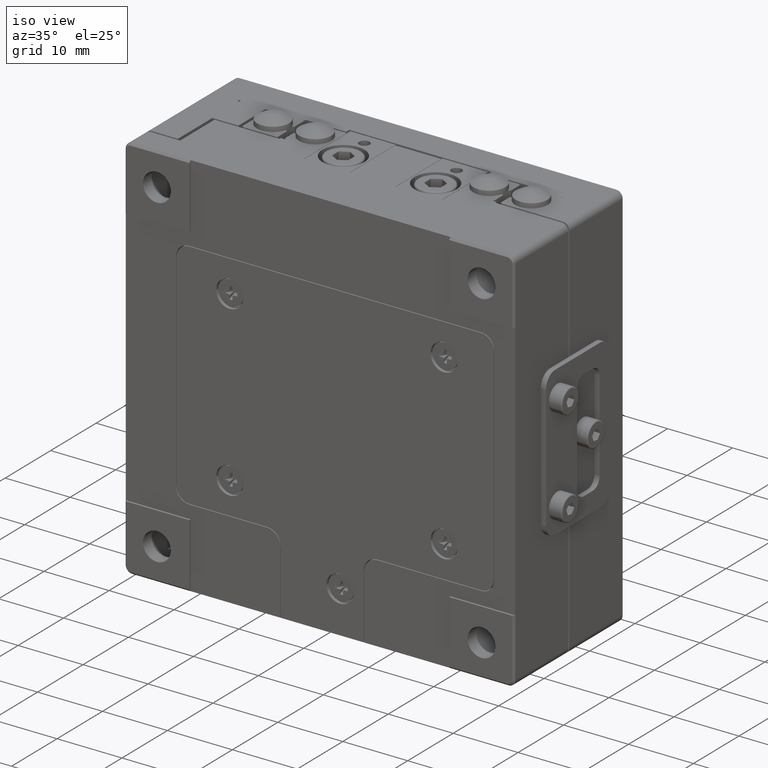
[diagram: clean part render]
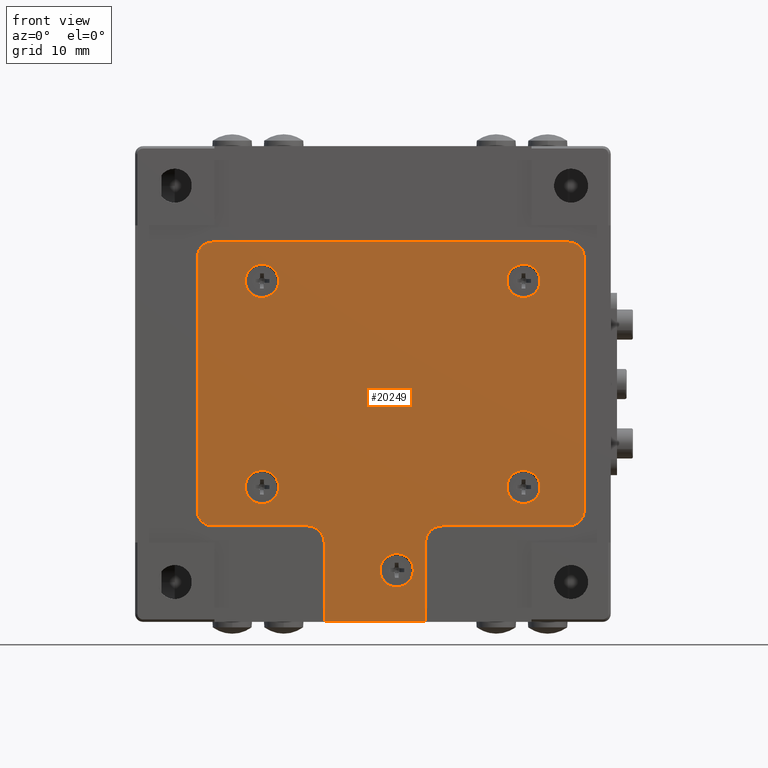
[diagram: tour spotlight — one face highlighted and labeled with its STEP entity id]
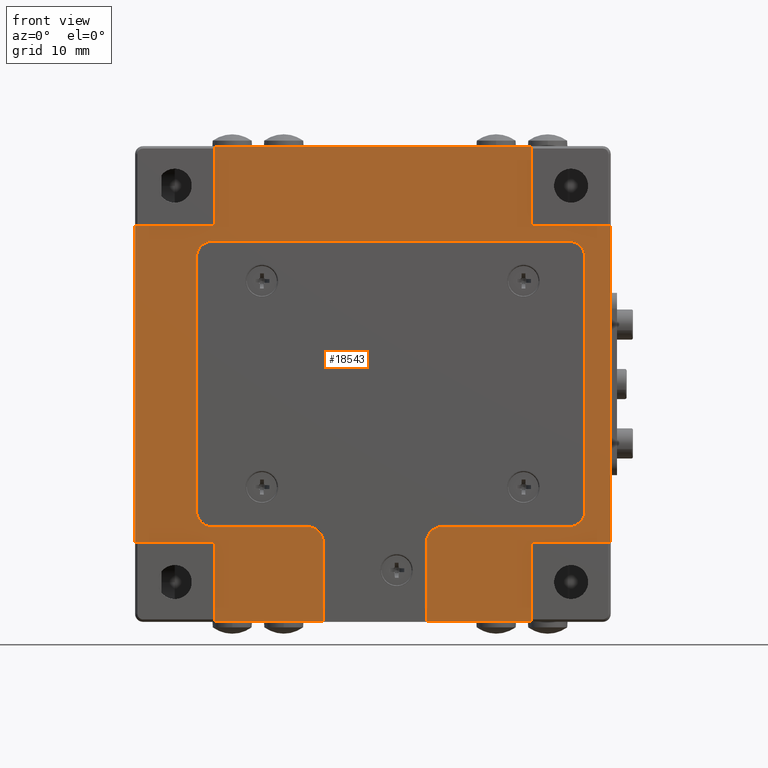
[diagram: tour spotlight — one face highlighted and labeled with its STEP entity id]
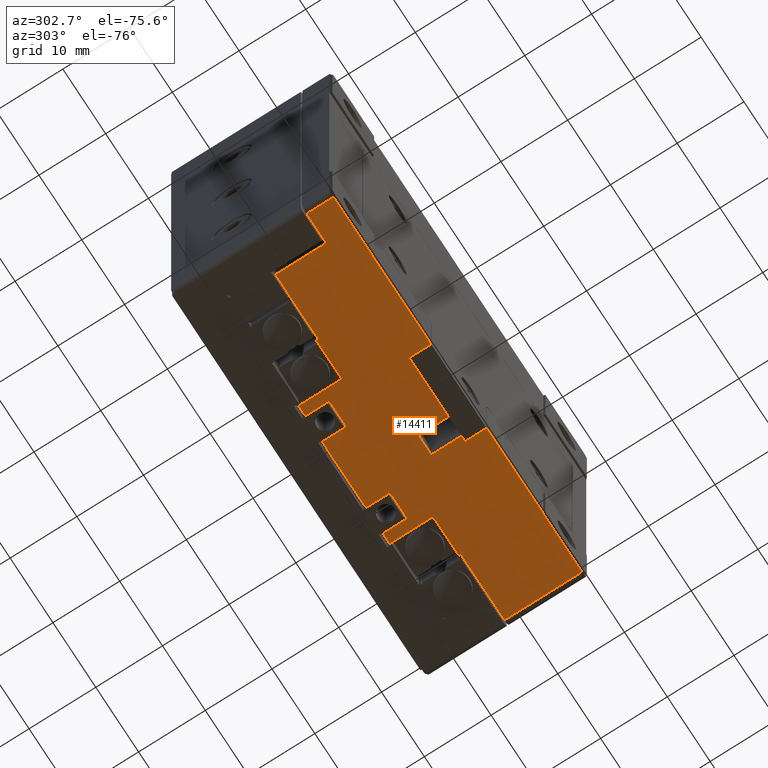
[diagram: tour spotlight — one face highlighted and labeled with its STEP entity id]
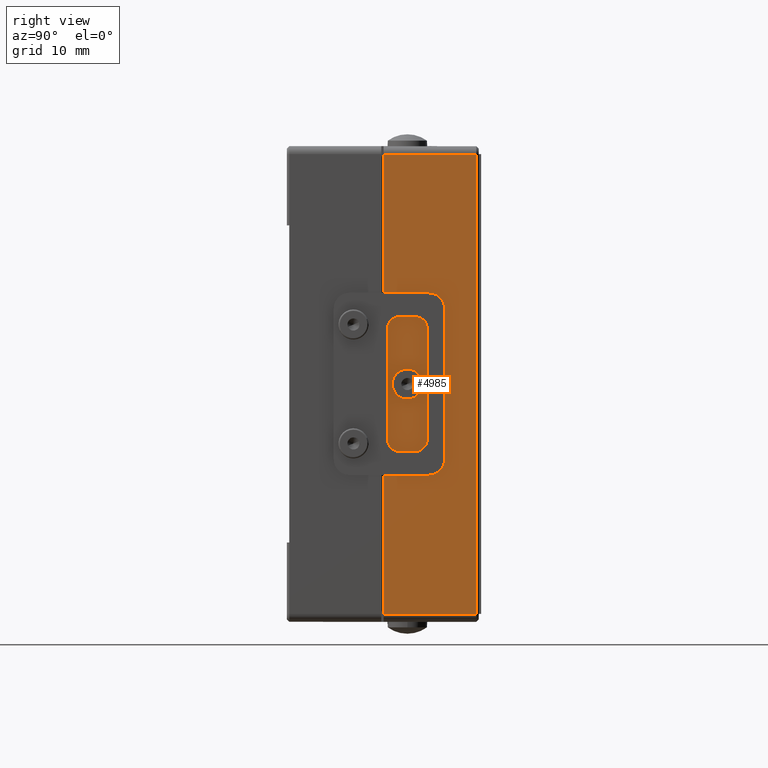
[diagram: tour spotlight — one face highlighted and labeled with its STEP entity id]
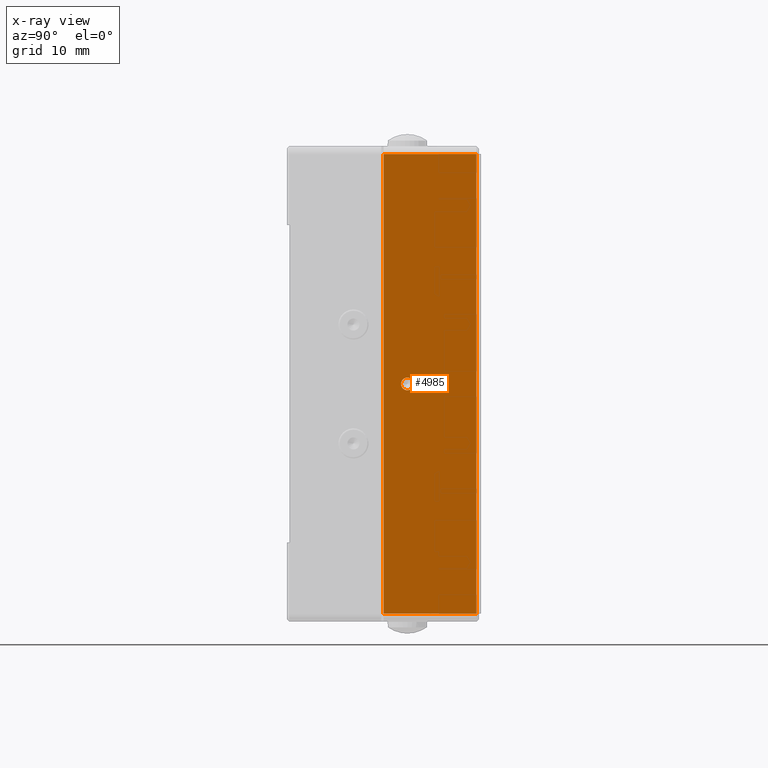
[diagram: x-ray of the same camera — body ghosted, this tour face saturated]
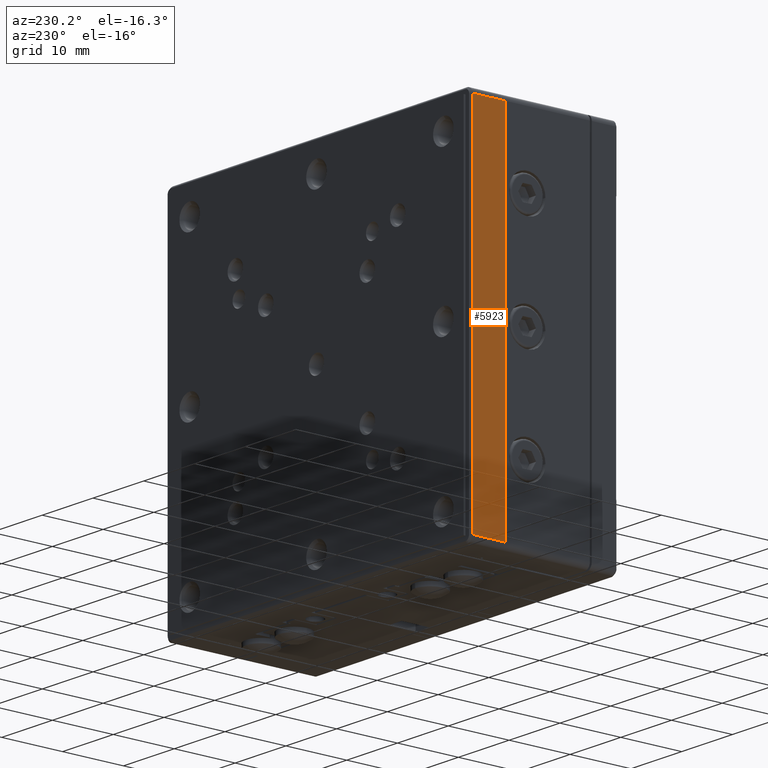
[diagram: tour spotlight — one face highlighted and labeled with its STEP entity id]
A machine part: a face-by-face anatomy tour. The part has 1220 B-rep faces; the first image is the clean iso view, then the 5 largest visible faces are spotlighted one at a time (largest first), each with its STEP entity span.

Face 1 — front view, entity #20249. In plain terms, the highlighted planar face has unit normal (-0, -1, 0).
Definition (entity closure, byte-faithful):
#110 = DIRECTION ( 'NONE',  ( 0.000000000000000000, 0.000000000000000000, 1.000000000000000000 ) ) ;
#206 = DIRECTION ( 'NONE',  ( 0.000000000000000000, 0.000000000000000000, 1.000000000000000000 ) ) ;
#336 = DIRECTION ( 'NONE',  ( -1.000000000000000000, 0.000000000000000000, 8.673617379884039170E-17 ) ) ;
#467 = ORIENTED_EDGE ( 'NONE', *, *, #13154, .T. ) ;
#592 = DIRECTION ( 'NONE',  ( -7.709882115452479399E-17, 0.000000000000000000, 1.000000000000000000 ) ) ;
#709 = ORIENTED_EDGE ( 'NONE', *, *, #3553, .F. ) ;
#737 = CARTESIAN_POINT ( 'NONE',  ( -19.05371621621619838, 3.250000000000000000, 35.73952702702704443 ) ) ;
#865 = FACE_BOUND ( 'NONE', #6868, .T. ) ;
#878 = VERTEX_POINT ( 'NONE', #7268 ) ;
#893 = ORIENTED_EDGE ( 'NONE', *, *, #4376, .T. ) ;
#912 = CARTESIAN_POINT ( 'NONE',  ( 9.946283783783799848, 3.250000000000000000, -5.410472972972970140 ) ) ;
#932 = CARTESIAN_POINT ( 'NONE',  ( 12.94628378378379985, 3.250000000000000000, 33.83952702702704585 ) ) ;
#1402 = CARTESIAN_POINT ( 'NONE',  ( 20.44628378378380162, 3.250000000000000000, 10.58952702702701920 ) ) ;
#1465 = DIRECTION ( 'NONE',  ( 0.000000000000000000, 1.000000000000000000, 0.000000000000000000 ) ) ;
#1580 = CARTESIAN_POINT ( 'NONE',  ( -16.05371621621620193, 3.250000000000000000, 27.58952702702704940 ) ) ;
#1615 = EDGE_CURVE ( 'NONE', #11840, #3204, #12539, .T. ) ;
#1677 = CARTESIAN_POINT ( 'NONE',  ( 14.84628378378380020, 3.250000000000000000, 33.83952702702704585 ) ) ;
#1700 = DIRECTION ( 'NONE',  ( 0.000000000000000000, 0.000000000000000000, 1.000000000000000000 ) ) ;
#1727 = VECTOR ( 'NONE', #592, 1000.000000000000000 ) ;
#2002 = AXIS2_PLACEMENT_3D ( 'NONE', #23221, #17405, #110 ) ;
#2059 = DIRECTION ( 'NONE',  ( 0.000000000000000000, 1.000000000000000000, 0.000000000000000000 ) ) ;
#2063 = AXIS2_PLACEMENT_3D ( 'NONE', #932, #12264, #4692 ) ;
#2103 = CARTESIAN_POINT ( 'NONE',  ( 16.94628378378380162, 3.250000000000000000, 6.939527027027029504 ) ) ;
#2359 = CARTESIAN_POINT ( 'NONE',  ( 12.94628378378379985, 3.250000000000000000, -11.16047297297295948 ) ) ;
#2457 = EDGE_CURVE ( 'NONE', #8651, #12078, #19892, .T. ) ;
#2742 = VERTEX_POINT ( 'NONE', #15441 ) ;
#2831 = CIRCLE ( 'NONE', #24618, 2.100000000000000089 ) ;
#3157 = VERTEX_POINT ( 'NONE', #5193 ) ;
#3204 = VERTEX_POINT ( 'NONE', #14126 ) ;
#3392 = EDGE_CURVE ( 'NONE', #15119, #11840, #4507, .T. ) ;
#3553 = EDGE_CURVE ( 'NONE', #24803, #6440, #12145, .T. ) ;
#3759 = EDGE_LOOP ( 'NONE', ( #15863, #13502 ) ) ;
#4118 = LINE ( 'NONE', #2103, #7642 ) ;
#4376 = EDGE_CURVE ( 'NONE', #9832, #9404, #10798, .T. ) ;
#4507 = LINE ( 'NONE', #737, #13755 ) ;
#4640 = CARTESIAN_POINT ( 'NONE',  ( 14.84628378378380020, 3.250000000000000000, 4.839527027027029860 ) ) ;
#4671 = DIRECTION ( 'NONE',  ( 0.000000000000000000, 0.000000000000000000, 1.000000000000000000 ) ) ;
#4692 = DIRECTION ( 'NONE',  ( 0.000000000000000000, 0.000000000000000000, 1.000000000000000000 ) ) ;
#4755 = FACE_BOUND ( 'NONE', #3759, .T. ) ;
#4758 = ORIENTED_EDGE ( 'NONE', *, *, #19203, .T. ) ;
#4896 = ORIENTED_EDGE ( 'NONE', *, *, #19155, .T. ) ;
#4990 = CARTESIAN_POINT ( 'NONE',  ( -19.05371621621619838, 3.250000000000000000, 35.73952702702704443 ) ) ;
#4994 = DIRECTION ( 'NONE',  ( -0.000000000000000000, 1.000000000000000000, 0.000000000000000000 ) ) ;
#5018 = VERTEX_POINT ( 'NONE', #7881 ) ;
#5125 = CARTESIAN_POINT ( 'NONE',  ( -19.05371621621619838, 3.250000000000000000, 33.83952702702704585 ) ) ;
#5193 = CARTESIAN_POINT ( 'NONE',  ( -16.05371621621620193, 3.250000000000000000, -3.310472972972970052 ) ) ;
#5294 = CARTESIAN_POINT ( 'NONE',  ( 9.946283783783799848, 3.250000000000000000, 27.58952702702704940 ) ) ;
#5538 = DIRECTION ( 'NONE',  ( 0.000000000000000000, 0.000000000000000000, 1.000000000000000000 ) ) ;
#5735 = EDGE_CURVE ( 'NONE', #17769, #10168, #2831, .T. ) ;
#5786 = DIRECTION ( 'NONE',  ( 0.000000000000000000, 1.000000000000000000, 0.000000000000000000 ) ) ;
#6132 = CARTESIAN_POINT ( 'NONE',  ( 16.94628378378380162, 3.250000000000000000, 6.939527027027029504 ) ) ;
#6338 = EDGE_CURVE ( 'NONE', #2742, #8651, #18778, .T. ) ;
#6440 = VERTEX_POINT ( 'NONE', #22303 ) ;
#6494 = EDGE_CURVE ( 'NONE', #9564, #878, #16326, .T. ) ;
#6611 = AXIS2_PLACEMENT_3D ( 'NONE', #5125, #4994, #8547 ) ;
#6868 = EDGE_LOOP ( 'NONE', ( #19378, #8448 ) ) ;
#6875 = DIRECTION ( 'NONE',  ( 0.000000000000000000, 0.000000000000000000, 1.000000000000000000 ) ) ;
#6964 = CARTESIAN_POINT ( 'NONE',  ( 26.94628378378379807, 3.250000000000000000, 19.73952702702700179 ) ) ;
#7011 = DIRECTION ( 'NONE',  ( 0.000000000000000000, 0.000000000000000000, 1.000000000000000000 ) ) ;
#7227 = DIRECTION ( 'NONE',  ( 1.000000000000000000, 0.000000000000000000, -2.168404344971010101E-16 ) ) ;
#7268 = CARTESIAN_POINT ( 'NONE',  ( 20.44628378378380162, 3.250000000000000000, 12.68952702702702062 ) ) ;
#7289 = ORIENTED_EDGE ( 'NONE', *, *, #2457, .T. ) ;
#7343 = EDGE_CURVE ( 'NONE', #10017, #19694, #10659, .T. ) ;
#7347 = DIRECTION ( 'NONE',  ( 0.000000000000000000, 1.000000000000000000, 0.000000000000000000 ) ) ;
#7430 = CIRCLE ( 'NONE', #7843, 2.100000000000000977 ) ;
#7431 = EDGE_CURVE ( 'NONE', #10168, #17769, #18338, .T. ) ;
#7583 = CARTESIAN_POINT ( 'NONE',  ( 26.94628378378379807, 3.250000000000000000, 19.73952702702700179 ) ) ;
#7642 = VECTOR ( 'NONE', #336, 1000.000000000000000 ) ;
#7676 = CARTESIAN_POINT ( 'NONE',  ( 12.94628378378379985, 3.250000000000000000, 35.73952702702704443 ) ) ;
#7777 = AXIS2_PLACEMENT_3D ( 'NONE', #17624, #13692, #21408 ) ;
#7843 = AXIS2_PLACEMENT_3D ( 'NONE', #5294, #5786, #5538 ) ;
#7881 = CARTESIAN_POINT ( 'NONE',  ( 26.94628378378379807, 3.250000000000000000, 6.939527027027029504 ) ) ;
#7890 = DIRECTION ( 'NONE',  ( 0.000000000000000000, 1.000000000000000000, 0.000000000000000000 ) ) ;
#8054 = ORIENTED_EDGE ( 'NONE', *, *, #5735, .F. ) ;
#8311 = DIRECTION ( 'NONE',  ( 0.000000000000000000, 1.000000000000000000, 0.000000000000000000 ) ) ;
#8448 = ORIENTED_EDGE ( 'NONE', *, *, #14517, .F. ) ;
#8541 = VERTEX_POINT ( 'NONE', #17851 ) ;
#8547 = DIRECTION ( 'NONE',  ( 1.000000000000000000, 0.000000000000000000, 0.000000000000000000 ) ) ;
#8651 = VERTEX_POINT ( 'NONE', #18839 ) ;
#8733 = FACE_OUTER_BOUND ( 'NONE', #14508, .T. ) ;
#8878 = VECTOR ( 'NONE', #15294, 1000.000000000000000 ) ;
#8960 = ORIENTED_EDGE ( 'NONE', *, *, #9758, .T. ) ;
#9051 = PLANE ( 'NONE',  #6611 ) ;
#9132 = CARTESIAN_POINT ( 'NONE',  ( 26.94628378378379807, 3.250000000000000000, 6.939527027027029504 ) ) ;
#9185 = CIRCLE ( 'NONE', #12788, 2.100000000000000089 ) ;
#9370 = CARTESIAN_POINT ( 'NONE',  ( 14.84628378378380020, 3.250000000000000000, 4.839527027027029860 ) ) ;
#9404 = VERTEX_POINT ( 'NONE', #4640 ) ;
#9411 = ORIENTED_EDGE ( 'NONE', *, *, #14665, .T. ) ;
#9483 = LINE ( 'NONE', #7583, #16135 ) ;
#9564 = VERTEX_POINT ( 'NONE', #12977 ) ;
#9630 = CARTESIAN_POINT ( 'NONE',  ( -16.05371621621620193, 3.250000000000000000, -5.410472972972970140 ) ) ;
#9758 = EDGE_CURVE ( 'NONE', #16662, #13971, #11934, .T. ) ;
#9832 = VERTEX_POINT ( 'NONE', #6132 ) ;
#9868 = ORIENTED_EDGE ( 'NONE', *, *, #16094, .T. ) ;
#10017 = VERTEX_POINT ( 'NONE', #18257 ) ;
#10064 = CARTESIAN_POINT ( 'NONE',  ( 16.94628378378380162, 3.250000000000000000, 19.73952702702700179 ) ) ;
#10168 = VERTEX_POINT ( 'NONE', #17320 ) ;
#10462 = DIRECTION ( 'NONE',  ( 0.000000000000000000, -1.000000000000000000, 0.000000000000000000 ) ) ;
#10524 = CARTESIAN_POINT ( 'NONE',  ( 20.44628378378380162, 3.250000000000000000, 10.58952702702701920 ) ) ;
#10643 = DIRECTION ( 'NONE',  ( -1.000000000000000000, 0.000000000000000000, 3.252606517456514781E-16 ) ) ;
#10659 = CIRCLE ( 'NONE', #16314, 2.100000000000000977 ) ;
#10798 = CIRCLE ( 'NONE', #14035, 2.100000000000000089 ) ;
#11131 = VECTOR ( 'NONE', #21212, 1000.000000000000000 ) ;
#11135 = ORIENTED_EDGE ( 'NONE', *, *, #7343, .T. ) ;
#11508 = AXIS2_PLACEMENT_3D ( 'NONE', #9630, #1465, #13056 ) ;
#11612 = LINE ( 'NONE', #1677, #18515 ) ;
#11791 = EDGE_CURVE ( 'NONE', #21116, #8541, #7430, .T. ) ;
#11840 = VERTEX_POINT ( 'NONE', #7676 ) ;
#11845 = VERTEX_POINT ( 'NONE', #16929 ) ;
#11934 = LINE ( 'NONE', #12185, #1727 ) ;
#12078 = VERTEX_POINT ( 'NONE', #12596 ) ;
#12140 = CIRCLE ( 'NONE', #17825, 2.099999999999999645 ) ;
#12145 = CIRCLE ( 'NONE', #21835, 2.100000000000000977 ) ;
#12185 = CARTESIAN_POINT ( 'NONE',  ( -20.95371621621620051, 3.250000000000000000, -11.16047297297295948 ) ) ;
#12264 = DIRECTION ( 'NONE',  ( 0.000000000000000000, 1.000000000000000000, 0.000000000000000000 ) ) ;
#12539 = CIRCLE ( 'NONE', #2063, 1.899999999999999023 ) ;
#12596 = CARTESIAN_POINT ( 'NONE',  ( -19.05371621621619838, 3.250000000000000000, -13.06047297297296161 ) ) ;
#12662 = EDGE_LOOP ( 'NONE', ( #23887, #12860 ) ) ;
#12711 = AXIS2_PLACEMENT_3D ( 'NONE', #2359, #7890, #206 ) ;
#12731 = CIRCLE ( 'NONE', #11508, 2.100000000000000089 ) ;
#12788 = AXIS2_PLACEMENT_3D ( 'NONE', #15179, #7347, #16831 ) ;
#12860 = ORIENTED_EDGE ( 'NONE', *, *, #11791, .F. ) ;
#12977 = CARTESIAN_POINT ( 'NONE',  ( 20.44628378378380162, 3.250000000000000000, 8.489527027027030215 ) ) ;
#13035 = CIRCLE ( 'NONE', #7777, 1.900000000000000577 ) ;
#13051 = ORIENTED_EDGE ( 'NONE', *, *, #24608, .T. ) ;
#13056 = DIRECTION ( 'NONE',  ( 0.000000000000000000, 0.000000000000000000, 1.000000000000000000 ) ) ;
#13109 = DIRECTION ( 'NONE',  ( 0.000000000000000000, 0.000000000000000000, -1.000000000000000000 ) ) ;
#13154 = EDGE_CURVE ( 'NONE', #17693, #5018, #24299, .T. ) ;
#13476 = DIRECTION ( 'NONE',  ( 0.000000000000000000, 0.000000000000000000, 1.000000000000000000 ) ) ;
#13502 = ORIENTED_EDGE ( 'NONE', *, *, #6494, .F. ) ;
#13692 = DIRECTION ( 'NONE',  ( 0.000000000000000000, 1.000000000000000000, 0.000000000000000000 ) ) ;
#13755 = VECTOR ( 'NONE', #7227, 1000.000000000000000 ) ;
#13765 = DIRECTION ( 'NONE',  ( 0.000000000000000000, 0.000000000000000000, -1.000000000000000000 ) ) ;
#13971 = VERTEX_POINT ( 'NONE', #21028 ) ;
#14035 = AXIS2_PLACEMENT_3D ( 'NONE', #22600, #21067, #13109 ) ;
#14126 = CARTESIAN_POINT ( 'NONE',  ( 14.84628378378380020, 3.250000000000000000, 33.83952702702704585 ) ) ;
#14508 = EDGE_LOOP ( 'NONE', ( #9411, #22160, #24361, #9868, #11135, #4758, #467, #23143, #893, #4896, #17162, #7289, #13051, #8960 ) ) ;
#14517 = EDGE_CURVE ( 'NONE', #11845, #3157, #9185, .T. ) ;
#14665 = EDGE_CURVE ( 'NONE', #13971, #15119, #23692, .T. ) ;
#14764 = DIRECTION ( 'NONE',  ( 0.000000000000000000, 0.000000000000000000, 1.000000000000000000 ) ) ;
#15119 = VERTEX_POINT ( 'NONE', #4990 ) ;
#15143 = EDGE_CURVE ( 'NONE', #6440, #24803, #20083, .T. ) ;
#15179 = CARTESIAN_POINT ( 'NONE',  ( -16.05371621621620193, 3.250000000000000000, -5.410472972972970140 ) ) ;
#15294 = DIRECTION ( 'NONE',  ( 1.084202172485503818E-16, 0.000000000000000000, -1.000000000000000000 ) ) ;
#15441 = CARTESIAN_POINT ( 'NONE',  ( 14.84628378378380020, 3.250000000000000000, -11.16047297297295948 ) ) ;
#15654 = ORIENTED_EDGE ( 'NONE', *, *, #7431, .F. ) ;
#15829 = EDGE_LOOP ( 'NONE', ( #22084, #709 ) ) ;
#15863 = ORIENTED_EDGE ( 'NONE', *, *, #23041, .F. ) ;
#15920 = CARTESIAN_POINT ( 'NONE',  ( 9.946283783783799848, 3.250000000000000000, 25.48952702702705153 ) ) ;
#16094 = EDGE_CURVE ( 'NONE', #3204, #10017, #11612, .T. ) ;
#16135 = VECTOR ( 'NONE', #17197, 1000.000000000000000 ) ;
#16156 = CARTESIAN_POINT ( 'NONE',  ( 16.94628378378380162, 3.250000000000000000, 21.83952702702705295 ) ) ;
#16314 = AXIS2_PLACEMENT_3D ( 'NONE', #16156, #10462, #4671 ) ;
#16326 = CIRCLE ( 'NONE', #19975, 2.099999999999999645 ) ;
#16628 = FACE_BOUND ( 'NONE', #19338, .T. ) ;
#16658 = EDGE_CURVE ( 'NONE', #8541, #21116, #24183, .T. ) ;
#16662 = VERTEX_POINT ( 'NONE', #19418 ) ;
#16831 = DIRECTION ( 'NONE',  ( 0.000000000000000000, 0.000000000000000000, 1.000000000000000000 ) ) ;
#16929 = CARTESIAN_POINT ( 'NONE',  ( -16.05371621621620193, 3.250000000000000000, -7.510472972972969785 ) ) ;
#17110 = EDGE_CURVE ( 'NONE', #5018, #9832, #4118, .T. ) ;
#17162 = ORIENTED_EDGE ( 'NONE', *, *, #6338, .T. ) ;
#17197 = DIRECTION ( 'NONE',  ( 1.000000000000000000, 0.000000000000000000, 0.000000000000000000 ) ) ;
#17320 = CARTESIAN_POINT ( 'NONE',  ( 9.946283783783799848, 3.250000000000000000, -7.510472972972969785 ) ) ;
#17405 = DIRECTION ( 'NONE',  ( 0.000000000000000000, 1.000000000000000000, 0.000000000000000000 ) ) ;
#17624 = CARTESIAN_POINT ( 'NONE',  ( -19.05371621621619838, 3.250000000000000000, -11.16047297297295948 ) ) ;
#17693 = VERTEX_POINT ( 'NONE', #6964 ) ;
#17769 = VERTEX_POINT ( 'NONE', #20485 ) ;
#17825 = AXIS2_PLACEMENT_3D ( 'NONE', #1402, #20581, #14764 ) ;
#17828 = DIRECTION ( 'NONE',  ( 0.000000000000000000, 0.000000000000000000, 1.000000000000000000 ) ) ;
#17851 = CARTESIAN_POINT ( 'NONE',  ( 9.946283783783799848, 3.250000000000000000, 29.68952702702705082 ) ) ;
#18208 = DIRECTION ( 'NONE',  ( 0.000000000000000000, 0.000000000000000000, 1.000000000000000000 ) ) ;
#18257 = CARTESIAN_POINT ( 'NONE',  ( 14.84628378378380020, 3.250000000000000000, 21.83952702702705295 ) ) ;
#18273 = FACE_BOUND ( 'NONE', #12662, .T. ) ;
#18338 = CIRCLE ( 'NONE', #21565, 2.100000000000000089 ) ;
#18371 = DIRECTION ( 'NONE',  ( 0.000000000000000000, 1.000000000000000000, 0.000000000000000000 ) ) ;
#18451 = DIRECTION ( 'NONE',  ( 0.000000000000000000, 1.000000000000000000, 0.000000000000000000 ) ) ;
#18515 = VECTOR ( 'NONE', #13765, 1000.000000000000000 ) ;
#18778 = CIRCLE ( 'NONE', #12711, 1.900000000000000577 ) ;
#18839 = CARTESIAN_POINT ( 'NONE',  ( 12.94628378378379985, 3.250000000000000000, -13.06047297297297938 ) ) ;
#18929 = DIRECTION ( 'NONE',  ( 0.000000000000000000, 1.000000000000000000, 0.000000000000000000 ) ) ;
#19155 = EDGE_CURVE ( 'NONE', #9404, #2742, #22895, .T. ) ;
#19203 = EDGE_CURVE ( 'NONE', #19694, #17693, #9483, .T. ) ;
#19241 = AXIS2_PLACEMENT_3D ( 'NONE', #19965, #18451, #18208 ) ;
#19338 = EDGE_LOOP ( 'NONE', ( #8054, #15654 ) ) ;
#19378 = ORIENTED_EDGE ( 'NONE', *, *, #22091, .F. ) ;
#19418 = CARTESIAN_POINT ( 'NONE',  ( -20.95371621621620051, 3.250000000000000000, -11.16047297297295948 ) ) ;
#19694 = VERTEX_POINT ( 'NONE', #10064 ) ;
#19892 = LINE ( 'NONE', #22299, #23880 ) ;
#19965 = CARTESIAN_POINT ( 'NONE',  ( -19.05371621621619838, 3.250000000000000000, 33.83952702702704585 ) ) ;
#19975 = AXIS2_PLACEMENT_3D ( 'NONE', #10524, #18371, #6875 ) ;
#20083 = CIRCLE ( 'NONE', #23316, 2.100000000000000977 ) ;
#20249 = ADVANCED_FACE ( 'NONE', ( #8733, #16628, #18273, #20541, #4755, #865 ), #9051, .T. ) ;
#20485 = CARTESIAN_POINT ( 'NONE',  ( 9.946283783783799848, 3.250000000000000000, -3.310472972972970052 ) ) ;
#20541 = FACE_BOUND ( 'NONE', #15829, .T. ) ;
#20581 = DIRECTION ( 'NONE',  ( 0.000000000000000000, 1.000000000000000000, 0.000000000000000000 ) ) ;
#20998 = CARTESIAN_POINT ( 'NONE',  ( -16.05371621621620193, 3.250000000000000000, 25.48952702702705153 ) ) ;
#21028 = CARTESIAN_POINT ( 'NONE',  ( -20.95371621621620051, 3.250000000000000000, 33.83952702702700321 ) ) ;
#21067 = DIRECTION ( 'NONE',  ( 0.000000000000000000, -1.000000000000000000, 0.000000000000000000 ) ) ;
#21116 = VERTEX_POINT ( 'NONE', #15920 ) ;
#21212 = DIRECTION ( 'NONE',  ( 0.000000000000000000, 0.000000000000000000, -1.000000000000000000 ) ) ;
#21408 = DIRECTION ( 'NONE',  ( 0.000000000000000000, 0.000000000000000000, -1.000000000000000000 ) ) ;
#21565 = AXIS2_PLACEMENT_3D ( 'NONE', #912, #21855, #17828 ) ;
#21835 = AXIS2_PLACEMENT_3D ( 'NONE', #1580, #2059, #1700 ) ;
#21855 = DIRECTION ( 'NONE',  ( 0.000000000000000000, 1.000000000000000000, 0.000000000000000000 ) ) ;
#22084 = ORIENTED_EDGE ( 'NONE', *, *, #15143, .F. ) ;
#22091 = EDGE_CURVE ( 'NONE', #3157, #11845, #12731, .T. ) ;
#22160 = ORIENTED_EDGE ( 'NONE', *, *, #3392, .T. ) ;
#22299 = CARTESIAN_POINT ( 'NONE',  ( 12.94628378378379985, 3.250000000000000000, -13.06047297297297938 ) ) ;
#22303 = CARTESIAN_POINT ( 'NONE',  ( -16.05371621621620193, 3.250000000000000000, 29.68952702702705082 ) ) ;
#22600 = CARTESIAN_POINT ( 'NONE',  ( 16.94628378378380162, 3.250000000000000000, 4.839527027027029860 ) ) ;
#22895 = LINE ( 'NONE', #9370, #8878 ) ;
#23041 = EDGE_CURVE ( 'NONE', #878, #9564, #12140, .T. ) ;
#23102 = CARTESIAN_POINT ( 'NONE',  ( 9.946283783783799848, 3.250000000000000000, -5.410472972972970140 ) ) ;
#23143 = ORIENTED_EDGE ( 'NONE', *, *, #17110, .T. ) ;
#23221 = CARTESIAN_POINT ( 'NONE',  ( 9.946283783783799848, 3.250000000000000000, 27.58952702702704940 ) ) ;
#23316 = AXIS2_PLACEMENT_3D ( 'NONE', #23734, #8311, #7011 ) ;
#23692 = CIRCLE ( 'NONE', #19241, 1.899999999999999023 ) ;
#23734 = CARTESIAN_POINT ( 'NONE',  ( -16.05371621621620193, 3.250000000000000000, 27.58952702702704940 ) ) ;
#23880 = VECTOR ( 'NONE', #10643, 1000.000000000000000 ) ;
#23887 = ORIENTED_EDGE ( 'NONE', *, *, #16658, .F. ) ;
#24183 = CIRCLE ( 'NONE', #2002, 2.100000000000000977 ) ;
#24299 = LINE ( 'NONE', #9132, #11131 ) ;
#24361 = ORIENTED_EDGE ( 'NONE', *, *, #1615, .T. ) ;
#24608 = EDGE_CURVE ( 'NONE', #12078, #16662, #13035, .T. ) ;
#24618 = AXIS2_PLACEMENT_3D ( 'NONE', #23102, #18929, #13476 ) ;
#24803 = VERTEX_POINT ( 'NONE', #20998 ) ;

Face 2 — front view, entity #18543. In plain terms, the highlighted planar face has unit normal (0, -1, 0).
Definition (entity closure, byte-faithful):
#9 = EDGE_CURVE ( 'NONE', #1943, #3916, #14811, .T. ) ;
#171 = ORIENTED_EDGE ( 'NONE', *, *, #3984, .T. ) ;
#269 = CARTESIAN_POINT ( 'NONE',  ( 50.00000000000000000, 0.000000000000000000, -10.00000000000000000 ) ) ;
#345 = ORIENTED_EDGE ( 'NONE', *, *, #19342, .F. ) ;
#484 = CARTESIAN_POINT ( 'NONE',  ( 3.061616997868384620E-15, 0.000000000000000000, -10.00000000000000000 ) ) ;
#531 = CARTESIAN_POINT ( 'NONE',  ( 54.75000000000000000, 0.000000000000000000, -48.00000000000000000 ) ) ;
#559 = CARTESIAN_POINT ( 'NONE',  ( 54.75000000000000000, 0.000000000000000000, -12.00000000000000000 ) ) ;
#581 = EDGE_CURVE ( 'NONE', #5050, #10345, #20841, .T. ) ;
#607 = ORIENTED_EDGE ( 'NONE', *, *, #18346, .T. ) ;
#638 = VERTEX_POINT ( 'NONE', #16243 ) ;
#723 = LINE ( 'NONE', #17640, #17426 ) ;
#846 = EDGE_CURVE ( 'NONE', #20441, #13633, #11048, .T. ) ;
#1083 = DIRECTION ( 'NONE',  ( 0.000000000000000000, 0.000000000000000000, 1.000000000000000000 ) ) ;
#1090 = VERTEX_POINT ( 'NONE', #8515 ) ;
#1098 = DIRECTION ( 'NONE',  ( 0.000000000000000000, 0.000000000000000000, -1.000000000000000000 ) ) ;
#1205 = EDGE_CURVE ( 'NONE', #1090, #3889, #14444, .T. ) ;
#1419 = CARTESIAN_POINT ( 'NONE',  ( 23.75000000000000000, 0.000000000000000000, -50.00000000000000000 ) ) ;
#1439 = DIRECTION ( 'NONE',  ( 0.000000000000000000, 0.000000000000000000, -1.000000000000000000 ) ) ;
#1506 = CARTESIAN_POINT ( 'NONE',  ( 50.00000000000000000, 0.000000000000000000, -50.00000000000000000 ) ) ;
#1852 = DIRECTION ( 'NONE',  ( -1.000000000000000000, 0.000000000000000000, 0.000000000000000000 ) ) ;
#1943 = VERTEX_POINT ( 'NONE', #269 ) ;
#2000 = DIRECTION ( 'NONE',  ( 0.000000000000000000, 1.000000000000000000, 0.000000000000000000 ) ) ;
#2157 = VERTEX_POINT ( 'NONE', #3377 ) ;
#2374 = DIRECTION ( 'NONE',  ( -1.000000000000000000, 0.000000000000000000, 0.000000000000000000 ) ) ;
#2448 = CARTESIAN_POINT ( 'NONE',  ( 50.00000000000000000, 0.000000000000000000, -1.224646799147351876E-15 ) ) ;
#2620 = ORIENTED_EDGE ( 'NONE', *, *, #1205, .T. ) ;
#2646 = EDGE_CURVE ( 'NONE', #23791, #22279, #7244, .T. ) ;
#2735 = CARTESIAN_POINT ( 'NONE',  ( 10.00000000000000000, 0.000000000000000000, 0.000000000000000000 ) ) ;
#3062 = CARTESIAN_POINT ( 'NONE',  ( 60.00000000000000000, 0.000000000000000000, -60.00000000000000000 ) ) ;
#3377 = CARTESIAN_POINT ( 'NONE',  ( 0.000000000000000000, 0.000000000000000000, -50.00000000000000000 ) ) ;
#3510 = CARTESIAN_POINT ( 'NONE',  ( 36.75000000000000000, 0.000000000000000000, -60.00000000000000000 ) ) ;
#3622 = CARTESIAN_POINT ( 'NONE',  ( 7.750000000000000000, 0.000000000000000000, -60.00000000000000000 ) ) ;
#3694 = CARTESIAN_POINT ( 'NONE',  ( 9.750000000000000000, 0.000000000000000000, -46.00000000000000000 ) ) ;
#3778 = CIRCLE ( 'NONE', #15472, 2.000000000000000000 ) ;
#3810 = AXIS2_PLACEMENT_3D ( 'NONE', #5469, #7243, #22670 ) ;
#3889 = VERTEX_POINT ( 'NONE', #1419 ) ;
#3916 = VERTEX_POINT ( 'NONE', #9592 ) ;
#3984 = EDGE_CURVE ( 'NONE', #5219, #6795, #11356, .T. ) ;
#3986 = CARTESIAN_POINT ( 'NONE',  ( 56.75000000000000000, 0.000000000000000000, -14.00000000000000000 ) ) ;
#4251 = VECTOR ( 'NONE', #7141, 1000.000000000000000 ) ;
#4535 = EDGE_CURVE ( 'NONE', #9306, #21532, #23216, .T. ) ;
#4582 = DIRECTION ( 'NONE',  ( 1.000000000000000000, 0.000000000000000000, 0.000000000000000000 ) ) ;
#4625 = CIRCLE ( 'NONE', #3810, 2.000000000000000000 ) ;
#4753 = VERTEX_POINT ( 'NONE', #24348 ) ;
#4952 = EDGE_CURVE ( 'NONE', #10345, #20908, #11424, .T. ) ;
#5050 = VERTEX_POINT ( 'NONE', #15593 ) ;
#5084 = EDGE_CURVE ( 'NONE', #22279, #1943, #8390, .T. ) ;
#5214 = CARTESIAN_POINT ( 'NONE',  ( 38.75000000000000000, 0.000000000000000000, -48.00000000000000000 ) ) ;
#5219 = VERTEX_POINT ( 'NONE', #20385 ) ;
#5469 = CARTESIAN_POINT ( 'NONE',  ( 54.75000000000000000, 0.000000000000000000, -14.00000000000000000 ) ) ;
#5523 = EDGE_CURVE ( 'NONE', #11112, #638, #14632, .T. ) ;
#5634 = AXIS2_PLACEMENT_3D ( 'NONE', #3694, #15052, #1439 ) ;
#5654 = CARTESIAN_POINT ( 'NONE',  ( 60.00000000000000000, 0.000000000000000000, -48.00000000000000000 ) ) ;
#5772 = EDGE_CURVE ( 'NONE', #4753, #7348, #22983, .T. ) ;
#6072 = CARTESIAN_POINT ( 'NONE',  ( 60.00000000000000000, 0.000000000000000000, -50.00000000000000000 ) ) ;
#6258 = CARTESIAN_POINT ( 'NONE',  ( 10.00000000000000000, 0.000000000000000000, -50.00000000000000000 ) ) ;
#6275 = CARTESIAN_POINT ( 'NONE',  ( 0.000000000000000000, 0.000000000000000000, -10.00000000000000000 ) ) ;
#6698 = AXIS2_PLACEMENT_3D ( 'NONE', #10172, #2000, #21187 ) ;
#6795 = VERTEX_POINT ( 'NONE', #559 ) ;
#6876 = FACE_OUTER_BOUND ( 'NONE', #14500, .T. ) ;
#6884 = EDGE_CURVE ( 'NONE', #17647, #1090, #8492, .T. ) ;
#7141 = DIRECTION ( 'NONE',  ( -1.204669080539449837E-16, 0.000000000000000000, 1.000000000000000000 ) ) ;
#7243 = DIRECTION ( 'NONE',  ( 0.000000000000000000, 1.000000000000000000, 0.000000000000000000 ) ) ;
#7244 = LINE ( 'NONE', #22671, #23973 ) ;
#7348 = VERTEX_POINT ( 'NONE', #23879 ) ;
#7383 = CARTESIAN_POINT ( 'NONE',  ( 7.750000000000000000, 0.000000000000000000, -46.00000000000000000 ) ) ;
#7442 = ORIENTED_EDGE ( 'NONE', *, *, #13723, .F. ) ;
#7624 = ORIENTED_EDGE ( 'NONE', *, *, #21496, .T. ) ;
#7787 = DIRECTION ( 'NONE',  ( 1.000000000000000000, 0.000000000000000000, 0.000000000000000000 ) ) ;
#7940 = ORIENTED_EDGE ( 'NONE', *, *, #4952, .T. ) ;
#7993 = VECTOR ( 'NONE', #1083, 1000.000000000000000 ) ;
#8037 = CARTESIAN_POINT ( 'NONE',  ( 7.750000000000000000, 0.000000000000000000, -14.00000000000000000 ) ) ;
#8390 = LINE ( 'NONE', #22169, #17368 ) ;
#8492 = LINE ( 'NONE', #3062, #13928 ) ;
#8515 = CARTESIAN_POINT ( 'NONE',  ( 23.75000000000000000, 0.000000000000000000, -60.00000000000000000 ) ) ;
#8617 = LINE ( 'NONE', #14302, #13489 ) ;
#8648 = CARTESIAN_POINT ( 'NONE',  ( 60.00000000000000000, 0.000000000000000000, -60.00000000000000000 ) ) ;
#8732 = ORIENTED_EDGE ( 'NONE', *, *, #5084, .F. ) ;
#8783 = VECTOR ( 'NONE', #9355, 1000.000000000000000 ) ;
#8830 = ORIENTED_EDGE ( 'NONE', *, *, #5772, .T. ) ;
#8965 = CARTESIAN_POINT ( 'NONE',  ( 60.00000000000000000, 0.000000000000000000, -60.00000000000000000 ) ) ;
#9048 = ORIENTED_EDGE ( 'NONE', *, *, #6884, .T. ) ;
#9135 = DIRECTION ( 'NONE',  ( 0.000000000000000000, 0.000000000000000000, 1.000000000000000000 ) ) ;
#9306 = VERTEX_POINT ( 'NONE', #6275 ) ;
#9355 = DIRECTION ( 'NONE',  ( 1.000000000000000000, 0.000000000000000000, 1.062075597536819908E-16 ) ) ;
#9400 = DIRECTION ( 'NONE',  ( 0.000000000000000000, 0.000000000000000000, -1.000000000000000000 ) ) ;
#9507 = DIRECTION ( 'NONE',  ( 1.000000000000000000, 0.000000000000000000, 0.000000000000000000 ) ) ;
#9530 = EDGE_CURVE ( 'NONE', #20572, #5050, #18406, .T. ) ;
#9589 = ORIENTED_EDGE ( 'NONE', *, *, #5523, .T. ) ;
#9592 = CARTESIAN_POINT ( 'NONE',  ( 60.00000000000000000, 0.000000000000000000, -10.00000000000000000 ) ) ;
#9795 = EDGE_CURVE ( 'NONE', #2157, #9306, #723, .T. ) ;
#9889 = EDGE_CURVE ( 'NONE', #11663, #3916, #12306, .T. ) ;
#10019 = ORIENTED_EDGE ( 'NONE', *, *, #9, .F. ) ;
#10028 = ORIENTED_EDGE ( 'NONE', *, *, #9889, .T. ) ;
#10172 = CARTESIAN_POINT ( 'NONE',  ( 54.75000000000000000, 0.000000000000000000, -46.00000000000000000 ) ) ;
#10260 = DIRECTION ( 'NONE',  ( 0.000000000000000000, 0.000000000000000000, -1.000000000000000000 ) ) ;
#10345 = VERTEX_POINT ( 'NONE', #531 ) ;
#10526 = PLANE ( 'NONE',  #13234 ) ;
#10698 = VECTOR ( 'NONE', #13629, 1000.000000000000000 ) ;
#10740 = CARTESIAN_POINT ( 'NONE',  ( 10.00000000000000000, 0.000000000000000000, -60.00000000000000000 ) ) ;
#10754 = VECTOR ( 'NONE', #9135, 1000.000000000000000 ) ;
#10816 = EDGE_CURVE ( 'NONE', #17394, #638, #22210, .T. ) ;
#10837 = DIRECTION ( 'NONE',  ( 1.000000000000000000, 0.000000000000000000, 0.000000000000000000 ) ) ;
#11048 = LINE ( 'NONE', #3622, #4251 ) ;
#11112 = VERTEX_POINT ( 'NONE', #13839 ) ;
#11186 = DIRECTION ( 'NONE',  ( 0.000000000000000000, 0.000000000000000000, -1.000000000000000000 ) ) ;
#11356 = LINE ( 'NONE', #11477, #8783 ) ;
#11406 = DIRECTION ( 'NONE',  ( 0.000000000000000000, 1.000000000000000000, 0.000000000000000000 ) ) ;
#11424 = LINE ( 'NONE', #19129, #13655 ) ;
#11477 = CARTESIAN_POINT ( 'NONE',  ( 60.00000000000000000, 0.000000000000000000, -12.00000000000000000 ) ) ;
#11534 = VERTEX_POINT ( 'NONE', #21398 ) ;
#11575 = ORIENTED_EDGE ( 'NONE', *, *, #581, .T. ) ;
#11640 = EDGE_CURVE ( 'NONE', #21532, #23791, #8617, .T. ) ;
#11663 = VERTEX_POINT ( 'NONE', #18342 ) ;
#11742 = DIRECTION ( 'NONE',  ( 0.000000000000000000, 0.000000000000000000, -1.000000000000000000 ) ) ;
#12306 = LINE ( 'NONE', #14208, #18235 ) ;
#12594 = DIRECTION ( 'NONE',  ( 0.000000000000000000, 0.000000000000000000, -1.000000000000000000 ) ) ;
#12821 = EDGE_CURVE ( 'NONE', #20908, #24521, #15958, .T. ) ;
#12854 = VECTOR ( 'NONE', #7787, 1000.000000000000000 ) ;
#13033 = ORIENTED_EDGE ( 'NONE', *, *, #11640, .F. ) ;
#13234 = AXIS2_PLACEMENT_3D ( 'NONE', #8648, #20648, #1098 ) ;
#13362 = DIRECTION ( 'NONE',  ( -1.000000000000000000, 0.000000000000000000, 0.000000000000000000 ) ) ;
#13435 = ORIENTED_EDGE ( 'NONE', *, *, #19108, .T. ) ;
#13489 = VECTOR ( 'NONE', #18472, 1000.000000000000000 ) ;
#13629 = DIRECTION ( 'NONE',  ( 1.000000000000000000, 0.000000000000000000, 0.000000000000000000 ) ) ;
#13633 = VERTEX_POINT ( 'NONE', #8037 ) ;
#13655 = VECTOR ( 'NONE', #1852, 1000.000000000000000 ) ;
#13669 = ORIENTED_EDGE ( 'NONE', *, *, #9795, .F. ) ;
#13709 = DIRECTION ( 'NONE',  ( 0.000000000000000000, 0.000000000000000000, 1.000000000000000000 ) ) ;
#13723 = EDGE_CURVE ( 'NONE', #11534, #2157, #21552, .T. ) ;
#13766 = CARTESIAN_POINT ( 'NONE',  ( 21.75000000000000000, 0.000000000000000000, -50.00000000000000000 ) ) ;
#13778 = DIRECTION ( 'NONE',  ( -1.000000000000000000, 0.000000000000000000, 0.000000000000000000 ) ) ;
#13839 = CARTESIAN_POINT ( 'NONE',  ( 36.75000000000000000, 0.000000000000000000, -60.00000000000000000 ) ) ;
#13928 = VECTOR ( 'NONE', #4582, 1000.000000000000000 ) ;
#13983 = VECTOR ( 'NONE', #2374, 1000.000000000000000 ) ;
#14078 = VECTOR ( 'NONE', #11186, 1000.000000000000000 ) ;
#14102 = VECTOR ( 'NONE', #10837, 1000.000000000000000 ) ;
#14208 = CARTESIAN_POINT ( 'NONE',  ( 60.00000000000000000, 0.000000000000000000, -60.00000000000000000 ) ) ;
#14302 = CARTESIAN_POINT ( 'NONE',  ( 10.00000000000000000, 0.000000000000000000, -10.00000000000000000 ) ) ;
#14444 = LINE ( 'NONE', #20260, #7993 ) ;
#14474 = EDGE_CURVE ( 'NONE', #17647, #11534, #22773, .T. ) ;
#14500 = EDGE_LOOP ( 'NONE', ( #2620, #7624, #8830, #13435, #20264, #23919, #171, #20142, #23098, #11575, #7940, #23980, #607, #9589, #16824, #345, #10028, #10019, #8732, #21893, #13033, #21955, #13669, #7442, #17928, #9048 ) ) ;
#14632 = LINE ( 'NONE', #8965, #14102 ) ;
#14811 = LINE ( 'NONE', #22535, #10698 ) ;
#14921 = CIRCLE ( 'NONE', #5634, 2.000000000000001776 ) ;
#15052 = DIRECTION ( 'NONE',  ( 0.000000000000000000, 1.000000000000000000, 0.000000000000000000 ) ) ;
#15080 = CARTESIAN_POINT ( 'NONE',  ( 9.750000000000000000, 0.000000000000000000, -14.00000000000000000 ) ) ;
#15090 = CARTESIAN_POINT ( 'NONE',  ( 36.75000000000000000, 0.000000000000000000, -50.00000000000000000 ) ) ;
#15160 = AXIS2_PLACEMENT_3D ( 'NONE', #17486, #23297, #15451 ) ;
#15451 = DIRECTION ( 'NONE',  ( 0.000000000000000000, 0.000000000000000000, -1.000000000000000000 ) ) ;
#15472 = AXIS2_PLACEMENT_3D ( 'NONE', #15080, #11406, #9400 ) ;
#15593 = CARTESIAN_POINT ( 'NONE',  ( 56.75000000000000000, 0.000000000000000000, -46.00000000000000000 ) ) ;
#15958 = CIRCLE ( 'NONE', #15160, 2.000000000000001776 ) ;
#16243 = CARTESIAN_POINT ( 'NONE',  ( 50.00000000000000000, 0.000000000000000000, -60.00000000000000000 ) ) ;
#16641 = CARTESIAN_POINT ( 'NONE',  ( 56.75000000000000000, 0.000000000000000000, -60.00000000000000000 ) ) ;
#16824 = ORIENTED_EDGE ( 'NONE', *, *, #10816, .F. ) ;
#17224 = CARTESIAN_POINT ( 'NONE',  ( 50.00000000000000000, 0.000000000000000000, -50.00000000000000000 ) ) ;
#17368 = VECTOR ( 'NONE', #10260, 1000.000000000000000 ) ;
#17394 = VERTEX_POINT ( 'NONE', #17224 ) ;
#17426 = VECTOR ( 'NONE', #13709, 1000.000000000000000 ) ;
#17461 = VECTOR ( 'NONE', #12594, 1000.000000000000000 ) ;
#17486 = CARTESIAN_POINT ( 'NONE',  ( 38.75000000000000000, 0.000000000000000000, -50.00000000000000000 ) ) ;
#17640 = CARTESIAN_POINT ( 'NONE',  ( 0.000000000000000000, 0.000000000000000000, -60.00000000000000000 ) ) ;
#17647 = VERTEX_POINT ( 'NONE', #10740 ) ;
#17928 = ORIENTED_EDGE ( 'NONE', *, *, #14474, .F. ) ;
#18235 = VECTOR ( 'NONE', #21917, 1000.000000000000000 ) ;
#18305 = CARTESIAN_POINT ( 'NONE',  ( 10.00000000000000000, 0.000000000000000000, -10.00000000000000000 ) ) ;
#18342 = CARTESIAN_POINT ( 'NONE',  ( 60.00000000000000000, 0.000000000000000000, -50.00000000000000000 ) ) ;
#18346 = EDGE_CURVE ( 'NONE', #24521, #11112, #22828, .T. ) ;
#18406 = LINE ( 'NONE', #16641, #20242 ) ;
#18472 = DIRECTION ( 'NONE',  ( 0.000000000000000000, 0.000000000000000000, 1.000000000000000000 ) ) ;
#18543 = ADVANCED_FACE ( 'NONE', ( #6876 ), #10526, .T. ) ;
#19108 = EDGE_CURVE ( 'NONE', #7348, #20441, #14921, .T. ) ;
#19129 = CARTESIAN_POINT ( 'NONE',  ( 60.00000000000000000, 0.000000000000000000, -48.00000000000000000 ) ) ;
#19342 = EDGE_CURVE ( 'NONE', #11663, #17394, #23390, .T. ) ;
#19449 = DIRECTION ( 'NONE',  ( 0.000000000000000000, -1.000000000000000000, 0.000000000000000000 ) ) ;
#19976 = EDGE_CURVE ( 'NONE', #13633, #5219, #3778, .T. ) ;
#20142 = ORIENTED_EDGE ( 'NONE', *, *, #22156, .T. ) ;
#20242 = VECTOR ( 'NONE', #24482, 1000.000000000000000 ) ;
#20260 = CARTESIAN_POINT ( 'NONE',  ( 23.75000000000000000, 0.000000000000000000, -60.00000000000000000 ) ) ;
#20264 = ORIENTED_EDGE ( 'NONE', *, *, #846, .T. ) ;
#20385 = CARTESIAN_POINT ( 'NONE',  ( 9.750000000000000000, 0.000000000000000000, -12.00000000000000000 ) ) ;
#20441 = VERTEX_POINT ( 'NONE', #7383 ) ;
#20572 = VERTEX_POINT ( 'NONE', #3986 ) ;
#20648 = DIRECTION ( 'NONE',  ( 0.000000000000000000, -1.000000000000000000, 0.000000000000000000 ) ) ;
#20841 = CIRCLE ( 'NONE', #6698, 2.000000000000001776 ) ;
#20908 = VERTEX_POINT ( 'NONE', #5214 ) ;
#20994 = CARTESIAN_POINT ( 'NONE',  ( 10.00000000000000000, 0.000000000000000000, -60.00000000000000000 ) ) ;
#21187 = DIRECTION ( 'NONE',  ( 0.000000000000000000, 0.000000000000000000, -1.000000000000000000 ) ) ;
#21197 = CIRCLE ( 'NONE', #21590, 2.000000000000001776 ) ;
#21372 = VECTOR ( 'NONE', #13362, 1000.000000000000000 ) ;
#21398 = CARTESIAN_POINT ( 'NONE',  ( 10.00000000000000000, 0.000000000000000000, -50.00000000000000000 ) ) ;
#21496 = EDGE_CURVE ( 'NONE', #3889, #4753, #21197, .T. ) ;
#21532 = VERTEX_POINT ( 'NONE', #18305 ) ;
#21552 = LINE ( 'NONE', #6258, #13983 ) ;
#21590 = AXIS2_PLACEMENT_3D ( 'NONE', #13766, #19449, #11742 ) ;
#21893 = ORIENTED_EDGE ( 'NONE', *, *, #2646, .F. ) ;
#21917 = DIRECTION ( 'NONE',  ( 0.000000000000000000, 0.000000000000000000, 1.000000000000000000 ) ) ;
#21955 = ORIENTED_EDGE ( 'NONE', *, *, #4535, .F. ) ;
#22156 = EDGE_CURVE ( 'NONE', #6795, #20572, #4625, .T. ) ;
#22169 = CARTESIAN_POINT ( 'NONE',  ( 50.00000000000000000, 0.000000000000000000, -1.224646799147351876E-15 ) ) ;
#22210 = LINE ( 'NONE', #1506, #17461 ) ;
#22279 = VERTEX_POINT ( 'NONE', #2448 ) ;
#22535 = CARTESIAN_POINT ( 'NONE',  ( 50.00000000000000000, 0.000000000000000000, -10.00000000000000000 ) ) ;
#22670 = DIRECTION ( 'NONE',  ( 0.000000000000000000, 0.000000000000000000, -1.000000000000000000 ) ) ;
#22671 = CARTESIAN_POINT ( 'NONE',  ( 60.00000000000000000, 0.000000000000000000, 0.000000000000000000 ) ) ;
#22773 = LINE ( 'NONE', #20994, #10754 ) ;
#22828 = LINE ( 'NONE', #3510, #14078 ) ;
#22983 = LINE ( 'NONE', #5654, #21372 ) ;
#23020 = VECTOR ( 'NONE', #13778, 1000.000000000000000 ) ;
#23098 = ORIENTED_EDGE ( 'NONE', *, *, #9530, .T. ) ;
#23216 = LINE ( 'NONE', #484, #12854 ) ;
#23297 = DIRECTION ( 'NONE',  ( 0.000000000000000000, -1.000000000000000000, 0.000000000000000000 ) ) ;
#23390 = LINE ( 'NONE', #6072, #23020 ) ;
#23791 = VERTEX_POINT ( 'NONE', #2735 ) ;
#23879 = CARTESIAN_POINT ( 'NONE',  ( 9.750000000000000000, 0.000000000000000000, -48.00000000000000000 ) ) ;
#23919 = ORIENTED_EDGE ( 'NONE', *, *, #19976, .T. ) ;
#23973 = VECTOR ( 'NONE', #9507, 1000.000000000000000 ) ;
#23980 = ORIENTED_EDGE ( 'NONE', *, *, #12821, .T. ) ;
#24348 = CARTESIAN_POINT ( 'NONE',  ( 21.75000000000000000, 0.000000000000000000, -48.00000000000000000 ) ) ;
#24482 = DIRECTION ( 'NONE',  ( 0.000000000000000000, 0.000000000000000000, -1.000000000000000000 ) ) ;
#24521 = VERTEX_POINT ( 'NONE', #15090 ) ;

Face 3 — auxiliary view, entity #14411. In plain terms, the highlighted planar face has unit normal (0, 0, -1).
Definition (entity closure, byte-faithful):
#569 = ORIENTED_EDGE ( 'NONE', *, *, #13816, .T. ) ;
#628 = CARTESIAN_POINT ( 'NONE',  ( 42.79999999999999716, 11.90000000000000036, -60.00000000000000000 ) ) ;
#638 = VERTEX_POINT ( 'NONE', #16243 ) ;
#664 = LINE ( 'NONE', #6311, #18570 ) ;
#722 = CARTESIAN_POINT ( 'NONE',  ( 27.05000000000000071, 14.80000000000000071, -60.00000000000000000 ) ) ;
#974 = VECTOR ( 'NONE', #9315, 1000.000000000000000 ) ;
#1090 = VERTEX_POINT ( 'NONE', #8515 ) ;
#1237 = EDGE_CURVE ( 'NONE', #10811, #1090, #23809, .T. ) ;
#1384 = VECTOR ( 'NONE', #15035, 1000.000000000000000 ) ;
#1396 = LINE ( 'NONE', #9084, #6293 ) ;
#1448 = VECTOR ( 'NONE', #13705, 1000.000000000000000 ) ;
#1546 = LINE ( 'NONE', #15155, #20473 ) ;
#1560 = VERTEX_POINT ( 'NONE', #10480 ) ;
#1713 = CARTESIAN_POINT ( 'NONE',  ( 41.25000000000000000, 14.80000000000000071, -60.00000000000000000 ) ) ;
#1887 = CARTESIAN_POINT ( 'NONE',  ( 42.79999999999999716, 18.39999999999999858, -60.00000000000000000 ) ) ;
#1897 = ORIENTED_EDGE ( 'NONE', *, *, #6884, .F. ) ;
#1989 = LINE ( 'NONE', #11311, #974 ) ;
#1993 = VECTOR ( 'NONE', #10153, 1000.000000000000000 ) ;
#2021 = CARTESIAN_POINT ( 'NONE',  ( 5.549999999989700505, 4.000000000000000000, -60.00000000000000000 ) ) ;
#2100 = VECTOR ( 'NONE', #14238, 1000.000000000000000 ) ;
#2102 = CARTESIAN_POINT ( 'NONE',  ( 32.89999999999999858, 7.750000000000000000, -60.00000000000000000 ) ) ;
#2173 = DIRECTION ( 'NONE',  ( -1.000000000000000000, 0.000000000000000000, 0.000000000000000000 ) ) ;
#2397 = VERTEX_POINT ( 'NONE', #2102 ) ;
#2472 = CARTESIAN_POINT ( 'NONE',  ( 21.50000000000000000, 11.90000000000000036, -60.00000000000000000 ) ) ;
#2609 = VECTOR ( 'NONE', #6758, 1000.000000000000000 ) ;
#2673 = CARTESIAN_POINT ( 'NONE',  ( 41.25000000000000000, 18.39999999999999858, -60.00000000000000000 ) ) ;
#2720 = CARTESIAN_POINT ( 'NONE',  ( 23.75000000000000000, 0.000000000000000000, -60.00000000000000000 ) ) ;
#2737 = VECTOR ( 'NONE', #19723, 1000.000000000000000 ) ;
#2821 = CARTESIAN_POINT ( 'NONE',  ( 15.50000000000000000, 11.59999999999999964, -60.00000000000000000 ) ) ;
#2897 = ORIENTED_EDGE ( 'NONE', *, *, #23305, .T. ) ;
#2978 = DIRECTION ( 'NONE',  ( -1.000000000000000000, 0.000000000000000000, 0.000000000000000000 ) ) ;
#3062 = CARTESIAN_POINT ( 'NONE',  ( 60.00000000000000000, 0.000000000000000000, -60.00000000000000000 ) ) ;
#3347 = ORIENTED_EDGE ( 'NONE', *, *, #6392, .F. ) ;
#3561 = CARTESIAN_POINT ( 'NONE',  ( 23.75000000000000000, 3.250000000000000000, -60.00000000000000000 ) ) ;
#3582 = VECTOR ( 'NONE', #8231, 1000.000000000000000 ) ;
#3732 = EDGE_CURVE ( 'NONE', #17386, #24218, #23893, .T. ) ;
#3866 = CARTESIAN_POINT ( 'NONE',  ( 15.50000000000000000, 11.90000000000000036, -60.00000000000000000 ) ) ;
#3918 = VERTEX_POINT ( 'NONE', #11107 ) ;
#4135 = ORIENTED_EDGE ( 'NONE', *, *, #23637, .F. ) ;
#4362 = VECTOR ( 'NONE', #16008, 1000.000000000000000 ) ;
#4367 = LINE ( 'NONE', #19512, #17548 ) ;
#4403 = VECTOR ( 'NONE', #12714, 1000.000000000000000 ) ;
#4527 = ORIENTED_EDGE ( 'NONE', *, *, #10978, .F. ) ;
#4582 = DIRECTION ( 'NONE',  ( 1.000000000000000000, 0.000000000000000000, 0.000000000000000000 ) ) ;
#4977 = CARTESIAN_POINT ( 'NONE',  ( 21.50000000000000000, 18.39999999999999858, -60.00000000000000000 ) ) ;
#5032 = VECTOR ( 'NONE', #20976, 1000.000000000000000 ) ;
#5049 = CARTESIAN_POINT ( 'NONE',  ( 21.50000000000000000, 18.39999999999999858, -60.00000000000000000 ) ) ;
#5122 = CARTESIAN_POINT ( 'NONE',  ( 5.549999999989700505, 4.000000000000000000, -60.00000000000000000 ) ) ;
#5304 = VECTOR ( 'NONE', #18407, 1000.000000000000000 ) ;
#5330 = ORIENTED_EDGE ( 'NONE', *, *, #11896, .F. ) ;
#5346 = CARTESIAN_POINT ( 'NONE',  ( 35.89999999999999858, 7.750000000000000000, -60.00000000000000000 ) ) ;
#5357 = LINE ( 'NONE', #13067, #24839 ) ;
#5448 = DIRECTION ( 'NONE',  ( 0.000000000000000000, 0.000000000000000000, -1.000000000000000000 ) ) ;
#5459 = VERTEX_POINT ( 'NONE', #19945 ) ;
#5523 = EDGE_CURVE ( 'NONE', #11112, #638, #14632, .T. ) ;
#5882 = LINE ( 'NONE', #6012, #11358 ) ;
#5940 = CARTESIAN_POINT ( 'NONE',  ( 21.50000000000000000, 18.39999999999999858, -60.00000000000000000 ) ) ;
#6012 = CARTESIAN_POINT ( 'NONE',  ( 42.79999999999999716, 18.39999999999999858, -60.00000000000000000 ) ) ;
#6293 = VECTOR ( 'NONE', #24502, 1000.000000000000000 ) ;
#6311 = CARTESIAN_POINT ( 'NONE',  ( 48.80000000000000426, 11.59999999999999964, -60.00000000000000000 ) ) ;
#6351 = EDGE_CURVE ( 'NONE', #13994, #17386, #8144, .T. ) ;
#6392 = EDGE_CURVE ( 'NONE', #13173, #18880, #4367, .T. ) ;
#6418 = VECTOR ( 'NONE', #2978, 1000.000000000000000 ) ;
#6465 = VERTEX_POINT ( 'NONE', #12560 ) ;
#6505 = CARTESIAN_POINT ( 'NONE',  ( 23.05000000000000071, 14.80000000000000071, -60.00000000000000000 ) ) ;
#6522 = CARTESIAN_POINT ( 'NONE',  ( 0.000000000000000000, 0.000000000000000000, -60.00000000000000000 ) ) ;
#6558 = VECTOR ( 'NONE', #12545, 1000.000000000000000 ) ;
#6645 = CARTESIAN_POINT ( 'NONE',  ( 23.05000000000000071, 18.39999999999999858, -60.00000000000000000 ) ) ;
#6758 = DIRECTION ( 'NONE',  ( 1.000000000000000000, 0.000000000000000000, 0.000000000000000000 ) ) ;
#6884 = EDGE_CURVE ( 'NONE', #17647, #1090, #8492, .T. ) ;
#6928 = CARTESIAN_POINT ( 'NONE',  ( 42.79999999999999716, 11.90000000000000036, -60.00000000000000000 ) ) ;
#7010 = ORIENTED_EDGE ( 'NONE', *, *, #7892, .T. ) ;
#7125 = ORIENTED_EDGE ( 'NONE', *, *, #19235, .F. ) ;
#7460 = PLANE ( 'NONE',  #8353 ) ;
#7678 = VERTEX_POINT ( 'NONE', #11986 ) ;
#7771 = VERTEX_POINT ( 'NONE', #6928 ) ;
#7774 = DIRECTION ( 'NONE',  ( -1.000000000000000000, 0.000000000000000000, 0.000000000000000000 ) ) ;
#7892 = EDGE_CURVE ( 'NONE', #2397, #1560, #1396, .T. ) ;
#7932 = ORIENTED_EDGE ( 'NONE', *, *, #15156, .T. ) ;
#7958 = DIRECTION ( 'NONE',  ( -1.000000000000000000, 0.000000000000000000, 0.000000000000000000 ) ) ;
#8144 = LINE ( 'NONE', #15600, #1448 ) ;
#8231 = DIRECTION ( 'NONE',  ( -1.000000000000000000, 0.000000000000000000, 0.000000000000000000 ) ) ;
#8259 = VERTEX_POINT ( 'NONE', #5346 ) ;
#8353 = AXIS2_PLACEMENT_3D ( 'NONE', #24552, #5448, #18604 ) ;
#8446 = VECTOR ( 'NONE', #18994, 1000.000000000000000 ) ;
#8492 = LINE ( 'NONE', #3062, #13928 ) ;
#8515 = CARTESIAN_POINT ( 'NONE',  ( 23.75000000000000000, 0.000000000000000000, -60.00000000000000000 ) ) ;
#8814 = CARTESIAN_POINT ( 'NONE',  ( 59.00000000000000000, 0.000000000000000000, -60.00000000000000000 ) ) ;
#8872 = CARTESIAN_POINT ( 'NONE',  ( 35.89999999999999858, 3.250000000000000000, -60.00000000000000000 ) ) ;
#8881 = CARTESIAN_POINT ( 'NONE',  ( 36.75000000000000000, 0.000000000000000000, -60.00000000000000000 ) ) ;
#8946 = CARTESIAN_POINT ( 'NONE',  ( 1.000000000000000000, 4.814824860968089633E-29, -60.00000000000000000 ) ) ;
#8965 = CARTESIAN_POINT ( 'NONE',  ( 60.00000000000000000, 0.000000000000000000, -60.00000000000000000 ) ) ;
#9084 = CARTESIAN_POINT ( 'NONE',  ( 32.89999999999999858, 3.250000000000000000, -60.00000000000000000 ) ) ;
#9292 = CARTESIAN_POINT ( 'NONE',  ( 37.25000000000000000, 14.80000000000000071, -60.00000000000000000 ) ) ;
#9315 = DIRECTION ( 'NONE',  ( -5.337610695313250398E-16, -1.000000000000000000, 0.000000000000000000 ) ) ;
#9329 = ORIENTED_EDGE ( 'NONE', *, *, #20112, .T. ) ;
#9417 = ORIENTED_EDGE ( 'NONE', *, *, #14873, .T. ) ;
#9456 = ORIENTED_EDGE ( 'NONE', *, *, #23334, .T. ) ;
#9670 = EDGE_CURVE ( 'NONE', #20661, #18985, #22711, .T. ) ;
#9873 = CARTESIAN_POINT ( 'NONE',  ( 21.50000000000000000, 18.39999999999999858, -60.00000000000000000 ) ) ;
#10035 = LINE ( 'NONE', #722, #1993 ) ;
#10151 = DIRECTION ( 'NONE',  ( -1.000000000000000000, 0.000000000000000000, 1.220025301787670164E-14 ) ) ;
#10153 = DIRECTION ( 'NONE',  ( 0.000000000000000000, 1.000000000000000000, 0.000000000000000000 ) ) ;
#10480 = CARTESIAN_POINT ( 'NONE',  ( 32.89999999999999858, 3.250000000000000000, -60.00000000000000000 ) ) ;
#10584 = ORIENTED_EDGE ( 'NONE', *, *, #17587, .F. ) ;
#10660 = VERTEX_POINT ( 'NONE', #17916 ) ;
#10740 = CARTESIAN_POINT ( 'NONE',  ( 10.00000000000000000, 0.000000000000000000, -60.00000000000000000 ) ) ;
#10764 = DIRECTION ( 'NONE',  ( 1.000000000000000000, 0.000000000000000000, 0.000000000000000000 ) ) ;
#10811 = VERTEX_POINT ( 'NONE', #16643 ) ;
#10837 = DIRECTION ( 'NONE',  ( 1.000000000000000000, 0.000000000000000000, 0.000000000000000000 ) ) ;
#10945 = ORIENTED_EDGE ( 'NONE', *, *, #17857, .T. ) ;
#10978 = EDGE_CURVE ( 'NONE', #14847, #20661, #1989, .T. ) ;
#11042 = VERTEX_POINT ( 'NONE', #13345 ) ;
#11107 = CARTESIAN_POINT ( 'NONE',  ( 37.25000000000000000, 18.39999999999999858, -60.00000000000000000 ) ) ;
#11112 = VERTEX_POINT ( 'NONE', #13839 ) ;
#11278 = CARTESIAN_POINT ( 'NONE',  ( 7.129999999999999893, 11.59999999999999964, -60.00000000000000000 ) ) ;
#11311 = CARTESIAN_POINT ( 'NONE',  ( 21.50000000000000000, 11.90000000000000036, -60.00000000000000000 ) ) ;
#11358 = VECTOR ( 'NONE', #15353, 1000.000000000000000 ) ;
#11812 = ORIENTED_EDGE ( 'NONE', *, *, #18756, .F. ) ;
#11896 = EDGE_CURVE ( 'NONE', #10660, #7771, #19554, .T. ) ;
#11986 = CARTESIAN_POINT ( 'NONE',  ( 15.50000000000000000, 11.59999999999999964, -60.00000000000000000 ) ) ;
#12110 = ORIENTED_EDGE ( 'NONE', *, *, #18139, .T. ) ;
#12158 = VERTEX_POINT ( 'NONE', #8946 ) ;
#12408 = VERTEX_POINT ( 'NONE', #13717 ) ;
#12505 = EDGE_CURVE ( 'NONE', #21114, #10660, #20282, .T. ) ;
#12545 = DIRECTION ( 'NONE',  ( 0.000000000000000000, -1.000000000000000000, 0.000000000000000000 ) ) ;
#12560 = CARTESIAN_POINT ( 'NONE',  ( 23.05000000000000071, 14.80000000000000071, -60.00000000000000000 ) ) ;
#12650 = CARTESIAN_POINT ( 'NONE',  ( 15.50000000000000000, 11.90000000000000036, -60.00000000000000000 ) ) ;
#12653 = EDGE_CURVE ( 'NONE', #10811, #1560, #5357, .T. ) ;
#12714 = DIRECTION ( 'NONE',  ( 0.000000000000000000, -1.000000000000000000, 0.000000000000000000 ) ) ;
#12796 = CARTESIAN_POINT ( 'NONE',  ( 35.60000000000000142, 7.750000000000000000, -60.00000000000000000 ) ) ;
#12904 = CARTESIAN_POINT ( 'NONE',  ( 0.000000000000000000, 0.000000000000000000, -60.00000000000000000 ) ) ;
#12912 = LINE ( 'NONE', #8881, #21223 ) ;
#12947 = DIRECTION ( 'NONE',  ( 1.000000000000000000, 0.000000000000000000, 0.000000000000000000 ) ) ;
#13067 = CARTESIAN_POINT ( 'NONE',  ( 23.75000000000000000, 3.250000000000000000, -60.00000000000000000 ) ) ;
#13118 = EDGE_CURVE ( 'NONE', #11112, #14190, #12912, .T. ) ;
#13173 = VERTEX_POINT ( 'NONE', #2021 ) ;
#13272 = LINE ( 'NONE', #3561, #5032 ) ;
#13345 = CARTESIAN_POINT ( 'NONE',  ( 23.05000000000000071, 18.39999999999999858, -60.00000000000000000 ) ) ;
#13379 = VECTOR ( 'NONE', #7774, 1000.000000000000000 ) ;
#13604 = ORIENTED_EDGE ( 'NONE', *, *, #5523, .F. ) ;
#13664 = CARTESIAN_POINT ( 'NONE',  ( 48.80000000000000426, 11.59999999999999964, -60.00000000000000000 ) ) ;
#13691 = ORIENTED_EDGE ( 'NONE', *, *, #3732, .T. ) ;
#13705 = DIRECTION ( 'NONE',  ( 1.000000000000000000, 0.000000000000000000, 0.000000000000000000 ) ) ;
#13717 = CARTESIAN_POINT ( 'NONE',  ( 27.05000000000000071, 14.80000000000000071, -60.00000000000000000 ) ) ;
#13816 = EDGE_CURVE ( 'NONE', #6465, #12408, #21929, .T. ) ;
#13839 = CARTESIAN_POINT ( 'NONE',  ( 36.75000000000000000, 0.000000000000000000, -60.00000000000000000 ) ) ;
#13885 = EDGE_LOOP ( 'NONE', ( #18477, #9417, #17944, #7010, #20080, #16848, #1897, #9456, #9329, #3347, #7932, #11812, #22954, #14625, #4527, #10584, #2897, #569, #19243, #15925, #18766, #16688, #13691, #16373, #4135, #5330, #18281, #7125, #12110, #10945, #13604, #17835 ) ) ;
#13928 = VECTOR ( 'NONE', #4582, 1000.000000000000000 ) ;
#13994 = VERTEX_POINT ( 'NONE', #9292 ) ;
#14102 = VECTOR ( 'NONE', #10837, 1000.000000000000000 ) ;
#14190 = VERTEX_POINT ( 'NONE', #15822 ) ;
#14238 = DIRECTION ( 'NONE',  ( -1.000000000000000000, 0.000000000000000000, 0.000000000000000000 ) ) ;
#14411 = ADVANCED_FACE ( 'NONE', ( #16708 ), #7460, .T. ) ;
#14462 = LINE ( 'NONE', #4977, #6418 ) ;
#14537 = CARTESIAN_POINT ( 'NONE',  ( 1.000000000000000000, 0.000000000000000000, -60.00000000000000000 ) ) ;
#14625 = ORIENTED_EDGE ( 'NONE', *, *, #9670, .F. ) ;
#14632 = LINE ( 'NONE', #8965, #14102 ) ;
#14655 = LINE ( 'NONE', #14537, #1384 ) ;
#14847 = VERTEX_POINT ( 'NONE', #5049 ) ;
#14873 = EDGE_CURVE ( 'NONE', #22505, #8259, #1546, .T. ) ;
#15035 = DIRECTION ( 'NONE',  ( 0.000000000000000000, 1.000000000000000000, 0.000000000000000000 ) ) ;
#15155 = CARTESIAN_POINT ( 'NONE',  ( 35.89999999999999858, 7.750000000000000000, -60.00000000000000000 ) ) ;
#15156 = EDGE_CURVE ( 'NONE', #13173, #17849, #21834, .T. ) ;
#15263 = VECTOR ( 'NONE', #19423, 1000.000000000000000 ) ;
#15353 = DIRECTION ( 'NONE',  ( 0.000000000000000000, 1.000000000000000000, 0.000000000000000000 ) ) ;
#15600 = CARTESIAN_POINT ( 'NONE',  ( 37.25000000000000000, 14.80000000000000071, -60.00000000000000000 ) ) ;
#15694 = CARTESIAN_POINT ( 'NONE',  ( 0.9999999999963480324, 4.000000000000000000, -60.00000000000000000 ) ) ;
#15822 = CARTESIAN_POINT ( 'NONE',  ( 36.75000000000000000, 3.250000000000000000, -60.00000000000000000 ) ) ;
#15892 = VECTOR ( 'NONE', #10764, 1000.000000000000000 ) ;
#15904 = VECTOR ( 'NONE', #18042, 1000.000000000000000 ) ;
#15916 = CARTESIAN_POINT ( 'NONE',  ( 41.25000000000000000, 14.80000000000000071, -60.00000000000000000 ) ) ;
#15925 = ORIENTED_EDGE ( 'NONE', *, *, #18619, .F. ) ;
#15996 = LINE ( 'NONE', #6645, #5304 ) ;
#16008 = DIRECTION ( 'NONE',  ( 0.000000000000000000, 1.000000000000000000, 0.000000000000000000 ) ) ;
#16243 = CARTESIAN_POINT ( 'NONE',  ( 50.00000000000000000, 0.000000000000000000, -60.00000000000000000 ) ) ;
#16266 = VERTEX_POINT ( 'NONE', #19574 ) ;
#16320 = VECTOR ( 'NONE', #18333, 1000.000000000000000 ) ;
#16373 = ORIENTED_EDGE ( 'NONE', *, *, #22718, .F. ) ;
#16495 = CARTESIAN_POINT ( 'NONE',  ( 48.80000000000000426, 11.90000000000000036, -60.00000000000000000 ) ) ;
#16643 = CARTESIAN_POINT ( 'NONE',  ( 23.75000000000000000, 3.250000000000000000, -60.00000000000000000 ) ) ;
#16688 = ORIENTED_EDGE ( 'NONE', *, *, #6351, .T. ) ;
#16698 = CARTESIAN_POINT ( 'NONE',  ( 5.549999999989700505, 11.59999999999999964, -60.00000000000000000 ) ) ;
#16708 = FACE_OUTER_BOUND ( 'NONE', #13885, .T. ) ;
#16848 = ORIENTED_EDGE ( 'NONE', *, *, #1237, .T. ) ;
#17386 = VERTEX_POINT ( 'NONE', #1713 ) ;
#17493 = CARTESIAN_POINT ( 'NONE',  ( 37.25000000000000000, 18.39999999999999858, -60.00000000000000000 ) ) ;
#17548 = VECTOR ( 'NONE', #10151, 1000.000000000000000 ) ;
#17584 = VECTOR ( 'NONE', #24332, 1000.000000000000000 ) ;
#17587 = EDGE_CURVE ( 'NONE', #11042, #14847, #21634, .T. ) ;
#17647 = VERTEX_POINT ( 'NONE', #10740 ) ;
#17689 = VECTOR ( 'NONE', #17875, 1000.000000000000000 ) ;
#17835 = ORIENTED_EDGE ( 'NONE', *, *, #13118, .T. ) ;
#17849 = VERTEX_POINT ( 'NONE', #16698 ) ;
#17857 = EDGE_CURVE ( 'NONE', #16266, #638, #23356, .T. ) ;
#17875 = DIRECTION ( 'NONE',  ( 0.000000000000000000, -1.000000000000000000, 0.000000000000000000 ) ) ;
#17916 = CARTESIAN_POINT ( 'NONE',  ( 48.80000000000000426, 11.90000000000000036, -60.00000000000000000 ) ) ;
#17944 = ORIENTED_EDGE ( 'NONE', *, *, #20722, .F. ) ;
#18039 = LINE ( 'NONE', #6522, #2100 ) ;
#18042 = DIRECTION ( 'NONE',  ( -1.000000000000000000, 0.000000000000000000, 0.000000000000000000 ) ) ;
#18139 = EDGE_CURVE ( 'NONE', #18181, #16266, #24354, .T. ) ;
#18181 = VERTEX_POINT ( 'NONE', #22582 ) ;
#18281 = ORIENTED_EDGE ( 'NONE', *, *, #12505, .F. ) ;
#18333 = DIRECTION ( 'NONE',  ( -1.734723475976805201E-14, -1.000000000000000000, 0.000000000000000000 ) ) ;
#18384 = EDGE_CURVE ( 'NONE', #12408, #5459, #10035, .T. ) ;
#18407 = DIRECTION ( 'NONE',  ( 0.000000000000000000, -1.000000000000000000, 0.000000000000000000 ) ) ;
#18477 = ORIENTED_EDGE ( 'NONE', *, *, #21322, .F. ) ;
#18570 = VECTOR ( 'NONE', #2173, 1000.000000000000000 ) ;
#18604 = DIRECTION ( 'NONE',  ( 0.000000000000000000, -1.000000000000000000, 0.000000000000000000 ) ) ;
#18619 = EDGE_CURVE ( 'NONE', #3918, #5459, #14462, .T. ) ;
#18756 = EDGE_CURVE ( 'NONE', #7678, #17849, #21264, .T. ) ;
#18766 = ORIENTED_EDGE ( 'NONE', *, *, #24697, .T. ) ;
#18880 = VERTEX_POINT ( 'NONE', #15694 ) ;
#18985 = VERTEX_POINT ( 'NONE', #12650 ) ;
#18994 = DIRECTION ( 'NONE',  ( -1.000000000000000000, 0.000000000000000000, 0.000000000000000000 ) ) ;
#19235 = EDGE_CURVE ( 'NONE', #18181, #21114, #664, .T. ) ;
#19243 = ORIENTED_EDGE ( 'NONE', *, *, #18384, .T. ) ;
#19375 = LINE ( 'NONE', #17493, #6558 ) ;
#19423 = DIRECTION ( 'NONE',  ( -1.000000000000000000, 0.000000000000000000, 0.000000000000000000 ) ) ;
#19512 = CARTESIAN_POINT ( 'NONE',  ( 5.549999999989700505, 4.000000000000000000, -60.00000000000000000 ) ) ;
#19554 = LINE ( 'NONE', #628, #15904 ) ;
#19574 = CARTESIAN_POINT ( 'NONE',  ( 59.00000000000000000, 1.734723475976804925E-15, -60.00000000000000000 ) ) ;
#19723 = DIRECTION ( 'NONE',  ( 0.000000000000000000, 1.000000000000000000, 0.000000000000000000 ) ) ;
#19945 = CARTESIAN_POINT ( 'NONE',  ( 27.05000000000000071, 18.39999999999999858, -60.00000000000000000 ) ) ;
#19983 = LINE ( 'NONE', #2821, #16320 ) ;
#20080 = ORIENTED_EDGE ( 'NONE', *, *, #12653, .F. ) ;
#20112 = EDGE_CURVE ( 'NONE', #12158, #18880, #14655, .T. ) ;
#20259 = LINE ( 'NONE', #12796, #15892 ) ;
#20282 = LINE ( 'NONE', #16495, #17584 ) ;
#20473 = VECTOR ( 'NONE', #20593, 1000.000000000000000 ) ;
#20593 = DIRECTION ( 'NONE',  ( 0.000000000000000000, 1.000000000000000000, 0.000000000000000000 ) ) ;
#20661 = VERTEX_POINT ( 'NONE', #2472 ) ;
#20722 = EDGE_CURVE ( 'NONE', #2397, #8259, #20259, .T. ) ;
#20976 = DIRECTION ( 'NONE',  ( 1.000000000000000000, 0.000000000000000000, 0.000000000000000000 ) ) ;
#21114 = VERTEX_POINT ( 'NONE', #13664 ) ;
#21223 = VECTOR ( 'NONE', #22649, 1000.000000000000000 ) ;
#21264 = LINE ( 'NONE', #11278, #8446 ) ;
#21322 = EDGE_CURVE ( 'NONE', #22505, #14190, #13272, .T. ) ;
#21634 = LINE ( 'NONE', #9873, #3582 ) ;
#21786 = VERTEX_POINT ( 'NONE', #1887 ) ;
#21834 = LINE ( 'NONE', #5122, #4362 ) ;
#21929 = LINE ( 'NONE', #6505, #2609 ) ;
#22395 = EDGE_CURVE ( 'NONE', #18985, #7678, #19983, .T. ) ;
#22505 = VERTEX_POINT ( 'NONE', #8872 ) ;
#22582 = CARTESIAN_POINT ( 'NONE',  ( 59.00000000000000000, 11.59999999999999964, -60.00000000000000000 ) ) ;
#22649 = DIRECTION ( 'NONE',  ( 0.000000000000000000, 1.000000000000000000, 0.000000000000000000 ) ) ;
#22711 = LINE ( 'NONE', #3866, #13379 ) ;
#22718 = EDGE_CURVE ( 'NONE', #21786, #24218, #23260, .T. ) ;
#22954 = ORIENTED_EDGE ( 'NONE', *, *, #22395, .F. ) ;
#23260 = LINE ( 'NONE', #5940, #23443 ) ;
#23305 = EDGE_CURVE ( 'NONE', #11042, #6465, #15996, .T. ) ;
#23334 = EDGE_CURVE ( 'NONE', #17647, #12158, #18039, .T. ) ;
#23356 = LINE ( 'NONE', #12904, #15263 ) ;
#23443 = VECTOR ( 'NONE', #7958, 1000.000000000000000 ) ;
#23637 = EDGE_CURVE ( 'NONE', #7771, #21786, #5882, .T. ) ;
#23809 = LINE ( 'NONE', #2720, #17689 ) ;
#23893 = LINE ( 'NONE', #15916, #2737 ) ;
#24218 = VERTEX_POINT ( 'NONE', #2673 ) ;
#24332 = DIRECTION ( 'NONE',  ( 0.000000000000000000, 1.000000000000000000, 0.000000000000000000 ) ) ;
#24354 = LINE ( 'NONE', #8814, #4403 ) ;
#24502 = DIRECTION ( 'NONE',  ( 0.000000000000000000, -1.000000000000000000, 0.000000000000000000 ) ) ;
#24552 = CARTESIAN_POINT ( 'NONE',  ( 0.000000000000000000, 0.000000000000000000, -60.00000000000000000 ) ) ;
#24697 = EDGE_CURVE ( 'NONE', #3918, #13994, #19375, .T. ) ;
#24839 = VECTOR ( 'NONE', #12947, 1000.000000000000000 ) ;

Face 4 — right view, entity #4985. An x-ray twin of the same camera follows (body ghosted, this face saturated) — the face is partly hidden behind the body. In plain terms, the highlighted planar face has unit normal (-1, 0, 0).
Definition (entity closure, byte-faithful):
#397 = VERTEX_POINT ( 'NONE', #11446 ) ;
#1124 = ORIENTED_EDGE ( 'NONE', *, *, #19522, .F. ) ;
#1715 = CARTESIAN_POINT ( 'NONE',  ( -1.457329690985347829E-15, 3.000000000000000000, 29.19999999999999929 ) ) ;
#1780 = LINE ( 'NONE', #22740, #11597 ) ;
#1977 = PLANE ( 'NONE',  #12939 ) ;
#2098 = DIRECTION ( 'NONE',  ( 1.000000000000000000, 0.000000000000000000, 0.000000000000000000 ) ) ;
#2112 = DIRECTION ( 'NONE',  ( 0.000000000000000000, 0.000000000000000000, -1.000000000000000000 ) ) ;
#2191 = EDGE_LOOP ( 'NONE', ( #10483, #23339 ) ) ;
#2648 = VERTEX_POINT ( 'NONE', #16853 ) ;
#3005 = DIRECTION ( 'NONE',  ( -1.000000000000000000, 0.000000000000000000, 0.000000000000000000 ) ) ;
#3321 = CARTESIAN_POINT ( 'NONE',  ( 0.000000000000000000, 0.000000000000000000, 59.00000000000000000 ) ) ;
#3758 = AXIS2_PLACEMENT_3D ( 'NONE', #12849, #3005, #12719 ) ;
#3856 = DIRECTION ( 'NONE',  ( 0.000000000000000000, 1.000000000000000000, 0.000000000000000000 ) ) ;
#4002 = LINE ( 'NONE', #15234, #20308 ) ;
#4101 = CARTESIAN_POINT ( 'NONE',  ( 0.000000000000000000, 11.70000000000000107, 59.00000000000000000 ) ) ;
#4230 = FACE_OUTER_BOUND ( 'NONE', #17180, .T. ) ;
#4985 = ADVANCED_FACE ( 'NONE', ( #4230, #17372 ), #1977, .F. ) ;
#5046 = ORIENTED_EDGE ( 'NONE', *, *, #21087, .T. ) ;
#5638 = EDGE_CURVE ( 'NONE', #6596, #12634, #16577, .T. ) ;
#6166 = CIRCLE ( 'NONE', #3758, 0.7999999999999882760 ) ;
#6204 = DIRECTION ( 'NONE',  ( 0.000000000000000000, 1.000000000000000000, 0.000000000000000000 ) ) ;
#6596 = VERTEX_POINT ( 'NONE', #1715 ) ;
#7049 = DIRECTION ( 'NONE',  ( -1.000000000000000000, 0.000000000000000000, 0.000000000000000000 ) ) ;
#7115 = VERTEX_POINT ( 'NONE', #3321 ) ;
#9711 = AXIS2_PLACEMENT_3D ( 'NONE', #24376, #7049, #22234 ) ;
#10263 = EDGE_CURVE ( 'NONE', #2648, #397, #22115, .T. ) ;
#10483 = ORIENTED_EDGE ( 'NONE', *, *, #10871, .F. ) ;
#10871 = EDGE_CURVE ( 'NONE', #12634, #6596, #6166, .T. ) ;
#11040 = EDGE_CURVE ( 'NONE', #15495, #2648, #4002, .T. ) ;
#11446 = CARTESIAN_POINT ( 'NONE',  ( 0.000000000000000000, 0.000000000000000000, 1.000000000000000000 ) ) ;
#11597 = VECTOR ( 'NONE', #12877, 1000.000000000000000 ) ;
#11758 = ORIENTED_EDGE ( 'NONE', *, *, #10263, .T. ) ;
#12371 = CARTESIAN_POINT ( 'NONE',  ( 0.000000000000000000, 0.000000000000000000, 1.000000000000000000 ) ) ;
#12634 = VERTEX_POINT ( 'NONE', #20656 ) ;
#12719 = DIRECTION ( 'NONE',  ( 0.000000000000000000, 0.000000000000000000, 1.000000000000000000 ) ) ;
#12849 = CARTESIAN_POINT ( 'NONE',  ( -1.457329690985347829E-15, 3.000000000000000000, 30.00000000000000000 ) ) ;
#12877 = DIRECTION ( 'NONE',  ( 0.000000000000000000, 0.000000000000000000, -1.000000000000000000 ) ) ;
#12939 = AXIS2_PLACEMENT_3D ( 'NONE', #21159, #2098, #3856 ) ;
#15234 = CARTESIAN_POINT ( 'NONE',  ( 0.000000000000000000, 11.70000000000000107, 60.00000000000000000 ) ) ;
#15495 = VERTEX_POINT ( 'NONE', #4101 ) ;
#15554 = CARTESIAN_POINT ( 'NONE',  ( 0.000000000000000000, 12.00000000000000000, 59.00000000000000000 ) ) ;
#16577 = CIRCLE ( 'NONE', #9711, 0.7999999999999882760 ) ;
#16853 = CARTESIAN_POINT ( 'NONE',  ( 0.000000000000000000, 11.70000000000000107, 1.000000000000000000 ) ) ;
#17180 = EDGE_LOOP ( 'NONE', ( #5046, #21397, #11758, #1124 ) ) ;
#17334 = LINE ( 'NONE', #15554, #22772 ) ;
#17372 = FACE_BOUND ( 'NONE', #2191, .T. ) ;
#18072 = DIRECTION ( 'NONE',  ( 0.000000000000000000, -1.000000000000000000, 0.000000000000000000 ) ) ;
#18669 = VECTOR ( 'NONE', #18072, 1000.000000000000000 ) ;
#19522 = EDGE_CURVE ( 'NONE', #7115, #397, #1780, .T. ) ;
#20308 = VECTOR ( 'NONE', #2112, 1000.000000000000000 ) ;
#20656 = CARTESIAN_POINT ( 'NONE',  ( -1.457329690985347829E-15, 3.000000000000000000, 30.80000000000000071 ) ) ;
#21087 = EDGE_CURVE ( 'NONE', #7115, #15495, #17334, .T. ) ;
#21159 = CARTESIAN_POINT ( 'NONE',  ( 0.000000000000000000, 0.000000000000000000, 60.00000000000000000 ) ) ;
#21397 = ORIENTED_EDGE ( 'NONE', *, *, #11040, .T. ) ;
#22115 = LINE ( 'NONE', #12371, #18669 ) ;
#22234 = DIRECTION ( 'NONE',  ( 0.000000000000000000, 0.000000000000000000, 1.000000000000000000 ) ) ;
#22740 = CARTESIAN_POINT ( 'NONE',  ( 0.000000000000000000, 0.000000000000000000, 60.00000000000000000 ) ) ;
#22772 = VECTOR ( 'NONE', #6204, 1000.000000000000000 ) ;
#23339 = ORIENTED_EDGE ( 'NONE', *, *, #5638, .F. ) ;
#24376 = CARTESIAN_POINT ( 'NONE',  ( -1.457329690985347829E-15, 3.000000000000000000, 30.00000000000000000 ) ) ;

Face 5 — auxiliary view, entity #5923. In plain terms, the highlighted planar face has unit normal (1, 0, -0).
Definition (entity closure, byte-faithful):
#134 = LINE ( 'NONE', #20854, #16031 ) ;
#262 = EDGE_CURVE ( 'NONE', #6317, #3992, #22225, .T. ) ;
#547 = CARTESIAN_POINT ( 'NONE',  ( 60.00000000000000000, 11.70000000000000107, 60.00000000000000000 ) ) ;
#648 = DIRECTION ( 'NONE',  ( 0.000000000000000000, -1.000000000000000000, 0.000000000000000000 ) ) ;
#1865 = VECTOR ( 'NONE', #24124, 1000.000000000000000 ) ;
#2388 = FACE_OUTER_BOUND ( 'NONE', #20889, .T. ) ;
#3743 = ORIENTED_EDGE ( 'NONE', *, *, #3904, .T. ) ;
#3904 = EDGE_CURVE ( 'NONE', #9789, #6317, #134, .T. ) ;
#3992 = VERTEX_POINT ( 'NONE', #19069 ) ;
#5923 = ADVANCED_FACE ( 'NONE', ( #2388 ), #7918, .F. ) ;
#6317 = VERTEX_POINT ( 'NONE', #19389 ) ;
#6422 = LINE ( 'NONE', #11856, #11649 ) ;
#7918 = PLANE ( 'NONE',  #10067 ) ;
#9789 = VERTEX_POINT ( 'NONE', #13835 ) ;
#10057 = CARTESIAN_POINT ( 'NONE',  ( 60.00000000000000000, 12.00000000000000000, 60.00000000000000000 ) ) ;
#10067 = AXIS2_PLACEMENT_3D ( 'NONE', #10057, #13609, #13981 ) ;
#11649 = VECTOR ( 'NONE', #648, 1000.000000000000000 ) ;
#11856 = CARTESIAN_POINT ( 'NONE',  ( 60.00000000000000000, 6.299999999999999822, 59.00000000000000000 ) ) ;
#13324 = VERTEX_POINT ( 'NONE', #14121 ) ;
#13609 = DIRECTION ( 'NONE',  ( -1.000000000000000000, 0.000000000000000000, 0.000000000000000000 ) ) ;
#13835 = CARTESIAN_POINT ( 'NONE',  ( 60.00000000000000000, 6.299999999999999822, 59.00000000000000000 ) ) ;
#13981 = DIRECTION ( 'NONE',  ( 0.000000000000000000, 0.000000000000000000, 1.000000000000000000 ) ) ;
#14121 = CARTESIAN_POINT ( 'NONE',  ( 60.00000000000000000, 11.70000000000000107, 59.00000000000000000 ) ) ;
#15159 = DIRECTION ( 'NONE',  ( 0.000000000000000000, 0.000000000000000000, -1.000000000000000000 ) ) ;
#15432 = LINE ( 'NONE', #547, #21572 ) ;
#16031 = VECTOR ( 'NONE', #15159, 1000.000000000000000 ) ;
#16263 = EDGE_CURVE ( 'NONE', #13324, #9789, #6422, .T. ) ;
#16652 = ORIENTED_EDGE ( 'NONE', *, *, #16263, .T. ) ;
#18294 = CARTESIAN_POINT ( 'NONE',  ( 60.00000000000000000, 12.00000000000000000, 1.000000000000000000 ) ) ;
#19069 = CARTESIAN_POINT ( 'NONE',  ( 60.00000000000000000, 11.70000000000000107, 1.000000000000000000 ) ) ;
#19389 = CARTESIAN_POINT ( 'NONE',  ( 60.00000000000000000, 6.299999999999999822, 1.000000000000000000 ) ) ;
#19509 = ORIENTED_EDGE ( 'NONE', *, *, #21176, .T. ) ;
#20854 = CARTESIAN_POINT ( 'NONE',  ( 60.00000000000000000, 6.299999999999999822, 60.00000000000000000 ) ) ;
#20889 = EDGE_LOOP ( 'NONE', ( #20916, #19509, #16652, #3743 ) ) ;
#20916 = ORIENTED_EDGE ( 'NONE', *, *, #262, .T. ) ;
#21176 = EDGE_CURVE ( 'NONE', #3992, #13324, #15432, .T. ) ;
#21572 = VECTOR ( 'NONE', #23154, 1000.000000000000000 ) ;
#22225 = LINE ( 'NONE', #18294, #1865 ) ;
#23154 = DIRECTION ( 'NONE',  ( 0.000000000000000000, 0.000000000000000000, 1.000000000000000000 ) ) ;
#24124 = DIRECTION ( 'NONE',  ( 0.000000000000000000, 1.000000000000000000, 0.000000000000000000 ) ) ;